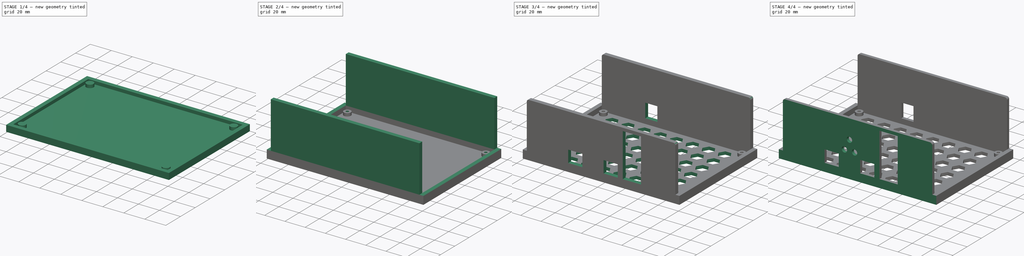
[diagram: build sequence overview — one tinted view per stage of 4, left to right]
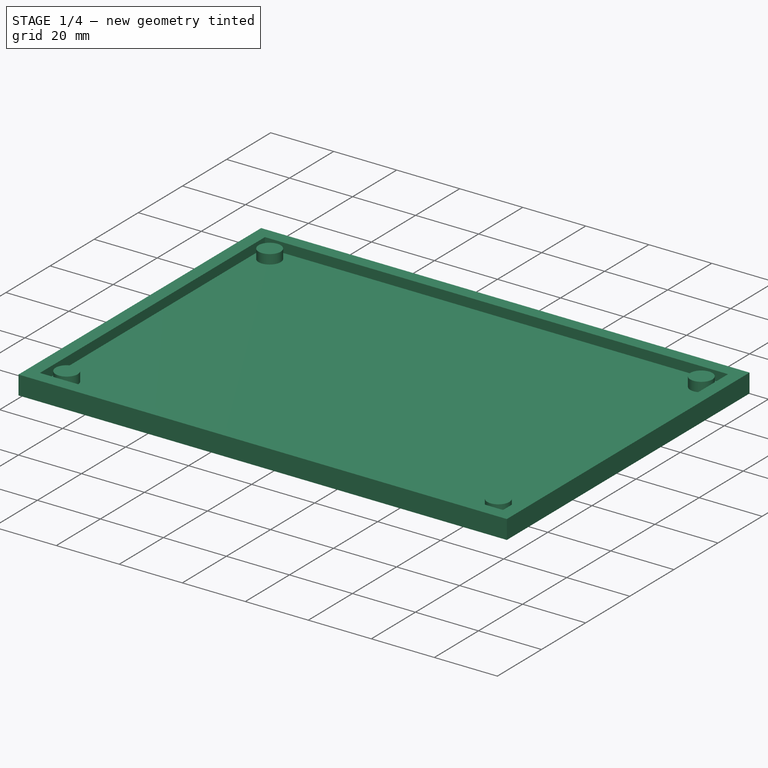
[diagram: stage 1 of 4 — iso view after this stage's code; geometry added in this stage tinted green]
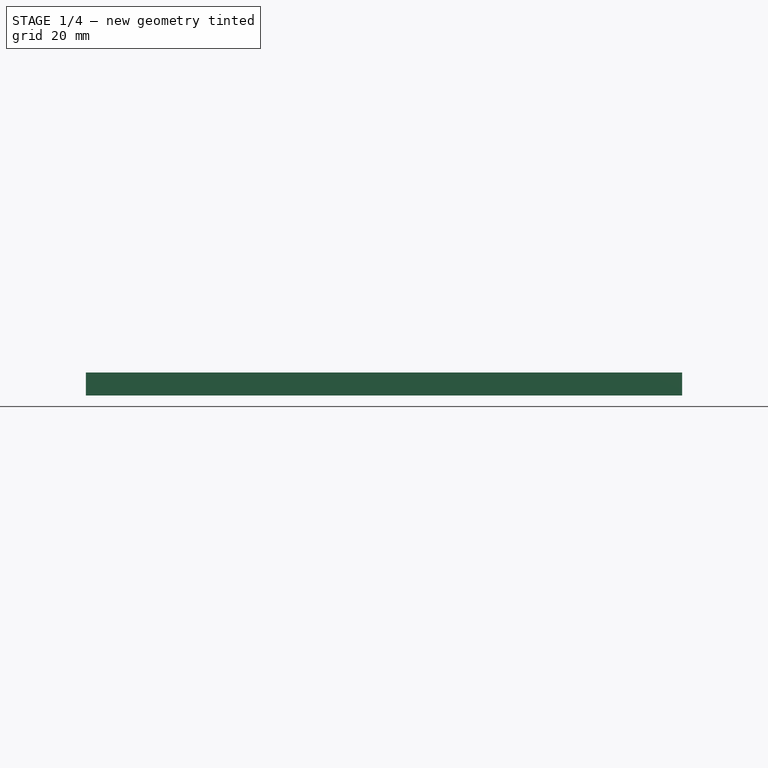
[diagram: stage 1 of 4 — front view after this stage's code; geometry added in this stage tinted green]
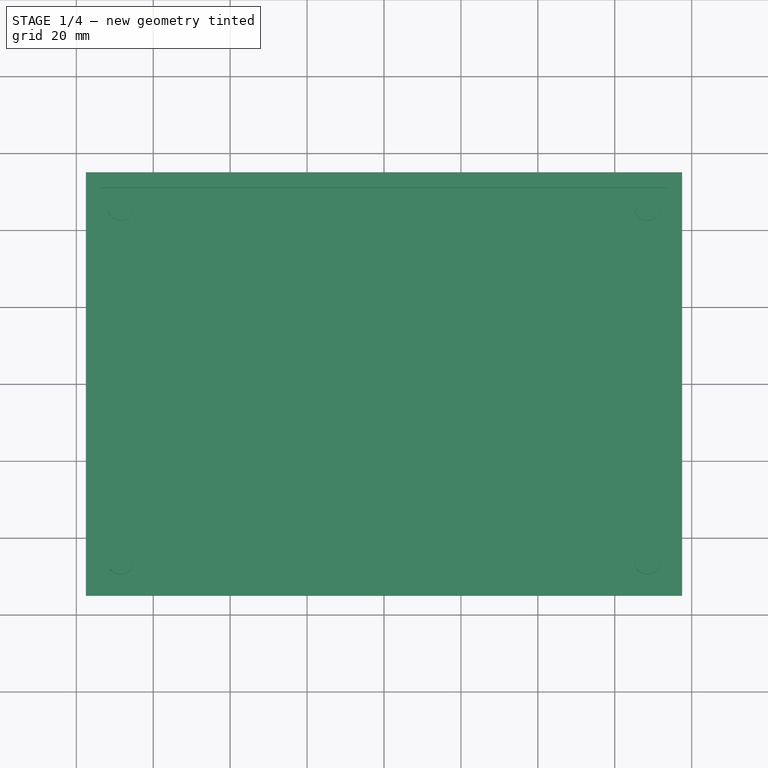
[diagram: stage 1 of 4 — top view after this stage's code; geometry added in this stage tinted green]
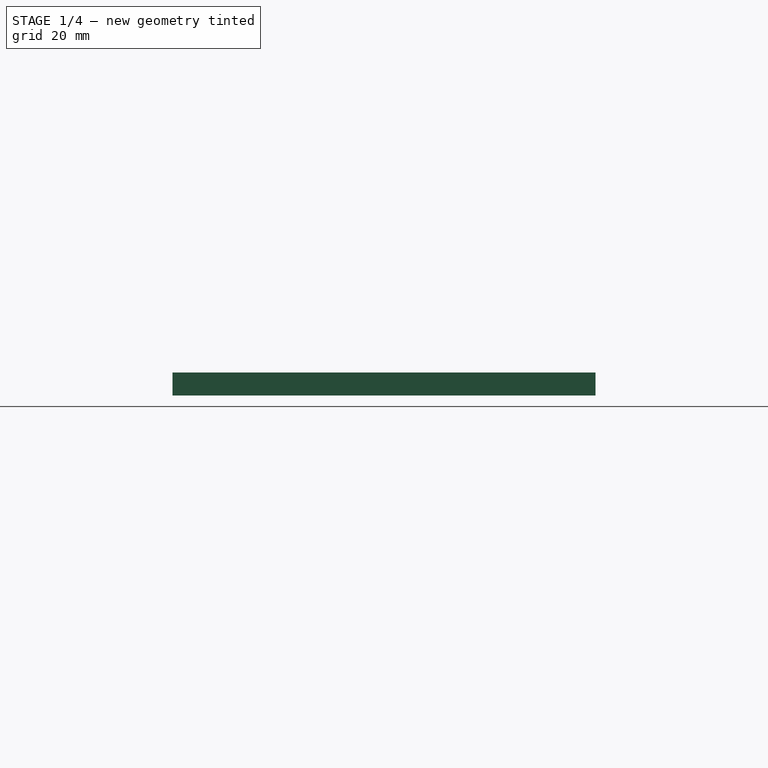
[diagram: stage 1 of 4 — right view after this stage's code; geometry added in this stage tinted green]
FCSTD DOCUMENT  (FreeCAD 0.18R4 (GitTag))
Label: MinitiounerProV1.1_Case
License: All rights reserved
LicenseURL: http://en.wikipedia.org/wiki/All_rights_reserved
objects: Sketcher::SketchObject×11, PartDesign::Pocket×8, PartDesign::Pad×4, PartDesign::Fillet×1, PartDesign::Body×1
note: 37 computed .brp shape members not serialized (recipe doc carries the construction recipe); baked Part::Feature solids carry a one-line shape summary decoded from their .brp

FEATURE [Sketcher::SketchObject] Sketch
  MapMode = 5
  Support = -> [XY_Plane]
  sketch-geometry (4):
    g0: LineSegment StartX=-77.5 StartY=55 StartZ=0 EndX=77.5 EndY=55 EndZ=0
    g1: LineSegment StartX=77.5 StartY=55 StartZ=0 EndX=77.5 EndY=-55 EndZ=0
    g2: LineSegment StartX=77.5 StartY=-55 StartZ=0 EndX=-77.5 EndY=-55 EndZ=0
    g3: LineSegment StartX=-77.5 StartY=-55 StartZ=0 EndX=-77.5 EndY=55 EndZ=0
  constraints (12):
    c: Coincident(g0,g1)
    c: Coincident(g1,g2)
    c: Coincident(g2,g3)
    c: Coincident(g3,g0)
    c: Horizontal(g0)
    c: Horizontal(g2)
    c: Vertical(g1)
    c: Vertical(g3)
    c: DistanceY(g-1,g0) = 55
    c: DistanceY(g2,g0) = 110
    c: DistanceX(g0,g-1) = 77.5
    c: DistanceX(g2,g1) = 155
FEATURE [PartDesign::Pad] Pad
  Length = 6
  Length2 = 100
  Profile = -> Sketch
  Type = 0
FEATURE [Sketcher::SketchObject] Sketch001
  MapMode = 5
  Placement = pos=(0,0,6) rot=(0,0,1;0rad)
  Support = -> [Pad]
  sketch-geometry (4):
    g0: LineSegment StartX=-73.5 StartY=51 StartZ=0 EndX=73.5 EndY=51 EndZ=0
    g1: LineSegment StartX=73.5 StartY=51 StartZ=0 EndX=73.5 EndY=-51 EndZ=0
    g2: LineSegment StartX=73.5 StartY=-51 StartZ=0 EndX=-73.5 EndY=-51 EndZ=0
    g3: LineSegment StartX=-73.5 StartY=-51 StartZ=0 EndX=-73.5 EndY=51 EndZ=0
  constraints (12):
    c: Coincident(g0,g1)
    c: Coincident(g1,g2)
    c: Coincident(g2,g3)
    c: Coincident(g3,g0)
    c: Horizontal(g0)
    c: Horizontal(g2)
    c: Vertical(g1)
    c: Vertical(g3)
    c: DistanceX(g0,g-1) = 73.5
    c: DistanceX(g0,g0) = 147
    c: DistanceY(g-1,g0) = 51
    c: DistanceY(g2,g0) = 102
FEATURE [PartDesign::Pocket] Pocket
  BaseFeature = -> Pad
  Length = 3
  Length2 = 100
  Profile = -> Sketch001
  Type = 0
FEATURE [Sketcher::SketchObject] Sketch002
  MapMode = 5
  Placement = pos=(0,0,3) rot=(0,0,1;0rad)
  Support = -> [Pocket]
  sketch-geometry (4):
    g0: Circle CenterX=-68.5 CenterY=46 CenterZ=0 NormalX=0 NormalY=0 NormalZ=1 AngleXU=0 Radius=3.5
    g1: Circle CenterX=-68.5 CenterY=-46 CenterZ=0 NormalX=0 NormalY=0 NormalZ=1 AngleXU=0 Radius=3.5
    g2: Circle CenterX=68.5 CenterY=46 CenterZ=0 NormalX=0 NormalY=0 NormalZ=1 AngleXU=0 Radius=3.5
    g3: Circle CenterX=68.5 CenterY=-46 CenterZ=0 NormalX=0 NormalY=0 NormalZ=1 AngleXU=0 Radius=3.5
  constraints (12):
    c: DistanceX(g0,g-1) = 68.5
    c: DistanceY(g-1,g0) = 46
    c: DistanceY(g-1,g2) = 46
    c: DistanceY(g3,g-1) = 46
    c: DistanceY(g1,g-1) = 46
    c: DistanceX(g-1,g2) = 68.5
    c: DistanceX(g-1,g3) = 68.5
    c: DistanceX(g1,g-1) = 68.5
    c: Radius(g0) = 3.5
    c: Radius(g1) = 3.5
    c: Radius(g2) = 3.5
    c: Radius(g3) = 3.5
FEATURE [PartDesign::Pad] Pad001
  BaseFeature = -> Pocket
  Length = 3
  Length2 = 100
  Profile = -> Sketch002
  Type = 0
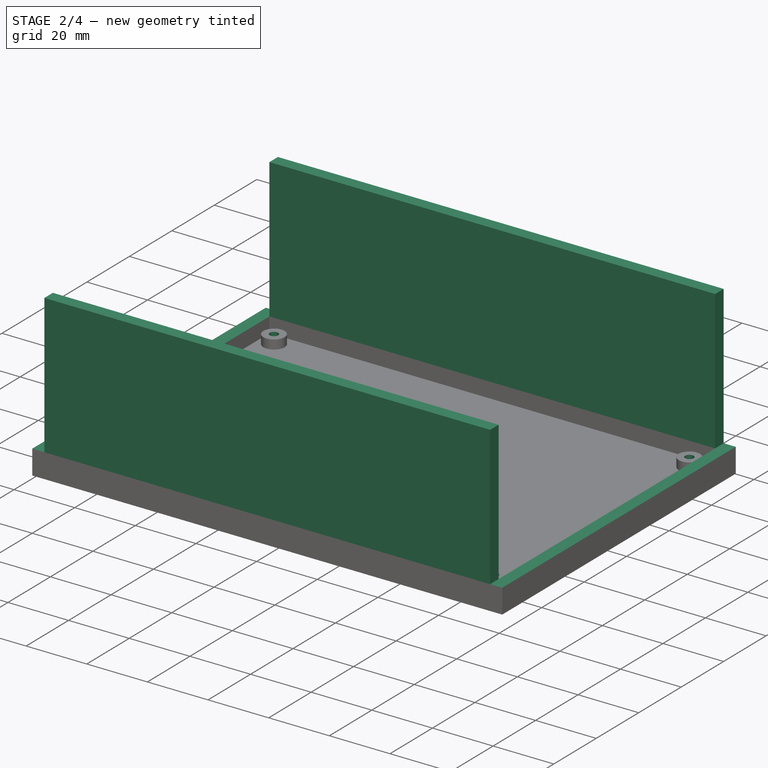
[diagram: stage 2 of 4 — iso view after this stage's code; geometry added in this stage tinted green]
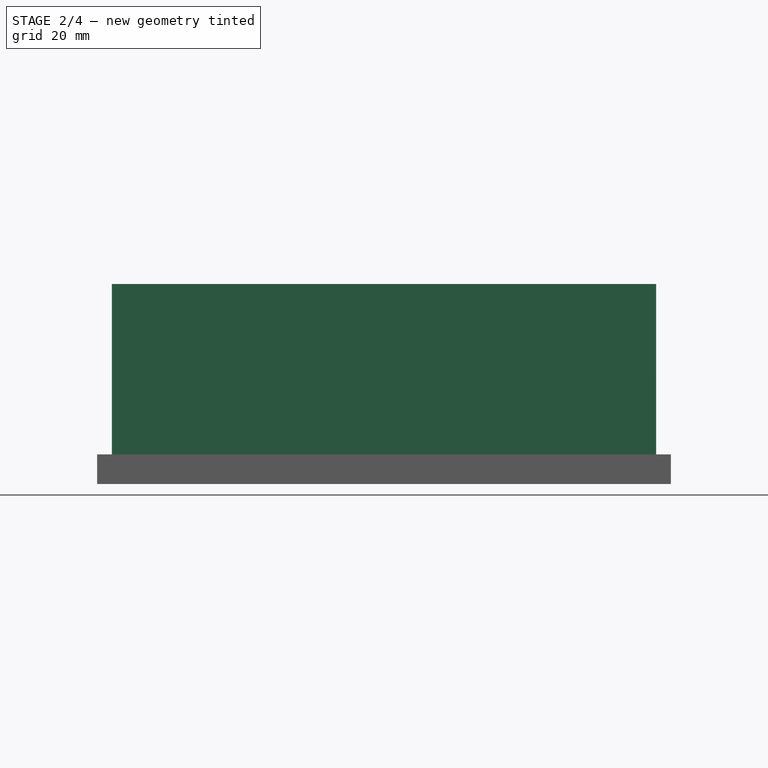
[diagram: stage 2 of 4 — front view after this stage's code; geometry added in this stage tinted green]
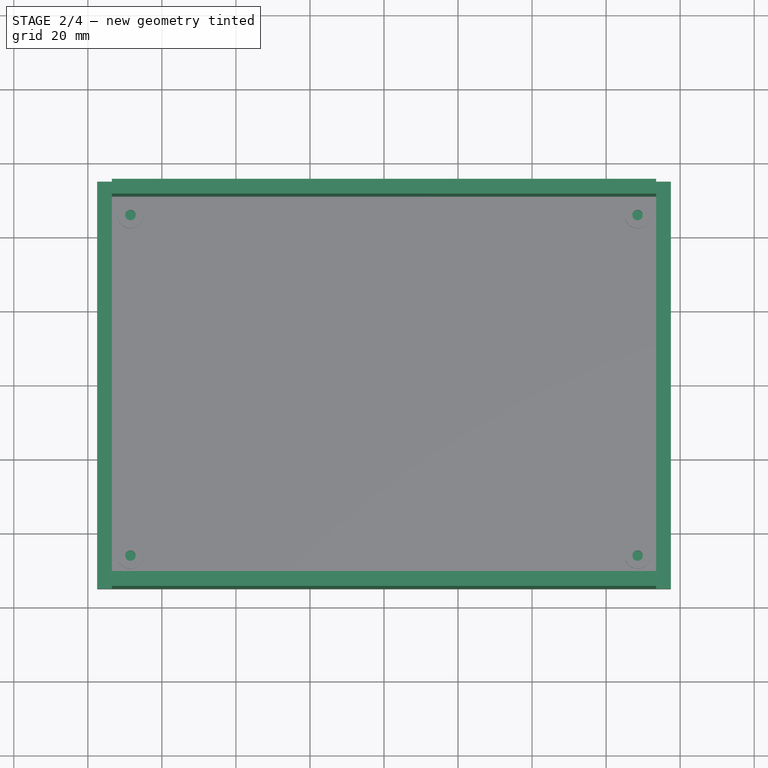
[diagram: stage 2 of 4 — top view after this stage's code; geometry added in this stage tinted green]
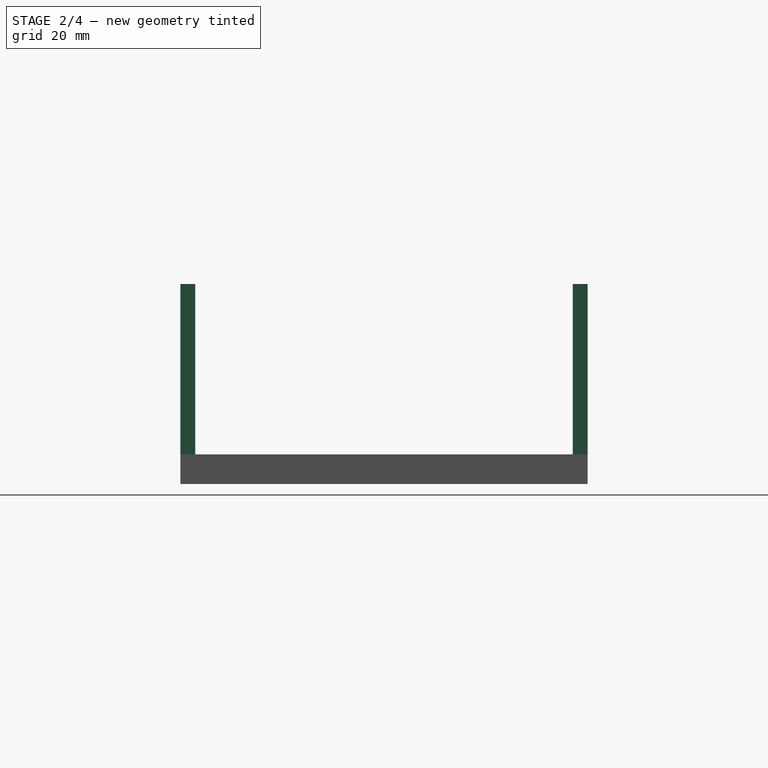
[diagram: stage 2 of 4 — right view after this stage's code; geometry added in this stage tinted green]
FEATURE [PartDesign::Pad] Pad002
  BaseFeature = -> Pad001
  Length = 2
  Length2 = 100
  Profile = -> Pad001 [Face5]
  Refine = true
  Type = 0
FEATURE [Sketcher::SketchObject] Sketch003
  MapMode = 5
  Placement = pos=(0,0,6) rot=(0,0,1;0rad)
  Support = -> [Pad002]
  sketch-geometry (4):
    g0: Circle CenterX=-68.5 CenterY=46 CenterZ=0 NormalX=0 NormalY=0 NormalZ=1 AngleXU=0 Radius=1.4
    g1: Circle CenterX=68.5 CenterY=46 CenterZ=0 NormalX=0 NormalY=0 NormalZ=1 AngleXU=0 Radius=1.4
    g2: Circle CenterX=68.5 CenterY=-46 CenterZ=0 NormalX=0 NormalY=0 NormalZ=1 AngleXU=0 Radius=1.4
    g3: Circle CenterX=-68.5 CenterY=-46 CenterZ=0 NormalX=0 NormalY=0 NormalZ=1 AngleXU=0 Radius=1.4
  constraints (12):
    c: DistanceX(g0,g-1) = 68.5
    c: DistanceX(g3,g-1) = 68.5
    c: DistanceX(g-1,g2) = 68.5
    c: DistanceX(g-1,g1) = 68.5
    c: DistanceY(g-1,g0) = 46
    c: DistanceY(g3,g-1) = 46
    c: DistanceY(g2,g-1) = 46
    c: DistanceY(g-1,g1) = 46
    c: Radius(g0) = 1.4
    c: Radius(g1) = 1.4
    c: Radius(g3) = 1.4
    c: Radius(g2) = 1.4
FEATURE [PartDesign::Pocket] Pocket001
  BaseFeature = -> Pad002
  Length = 5
  Length2 = 100
  Profile = -> Sketch003
  Type = 0
FEATURE [Sketcher::SketchObject] Sketch004
  MapMode = 5
  Placement = pos=(0,0,8) rot=(0,0,1;0rad)
  Support = -> [Pocket001]
  sketch-geometry (8):
    g0: LineSegment StartX=-73.5 StartY=-51 StartZ=0 EndX=73.5 EndY=-51 EndZ=0
    g1: LineSegment StartX=73.5 StartY=-51 StartZ=0 EndX=73.5 EndY=-55 EndZ=0
    g2: LineSegment StartX=73.5 StartY=-55 StartZ=0 EndX=-73.5 EndY=-55 EndZ=0
    g3: LineSegment StartX=-73.5 StartY=-55 StartZ=0 EndX=-73.5 EndY=-51 EndZ=0
    g4: LineSegment StartX=-73.5 StartY=55 StartZ=0 EndX=73.5 EndY=55 EndZ=0
    g5: LineSegment StartX=73.5 StartY=55 StartZ=0 EndX=73.5 EndY=51 EndZ=0
    g6: LineSegment StartX=73.5 StartY=51 StartZ=0 EndX=-73.5 EndY=51 EndZ=0
    g7: LineSegment StartX=-73.5 StartY=51 StartZ=0 EndX=-73.5 EndY=55 EndZ=0
  constraints (24):
    c: Coincident(g0,g1)
    c: Coincident(g1,g2)
    c: Coincident(g2,g3)
    c: Coincident(g3,g0)
    c: Horizontal(g0)
    c: Horizontal(g2)
    c: Vertical(g1)
    c: Vertical(g3)
    c: Coincident(g4,g5)
    c: Coincident(g5,g6)
    c: Coincident(g6,g7)
    c: Coincident(g7,g4)
    c: Horizontal(g4)
    c: Horizontal(g6)
    c: Vertical(g5)
    c: Vertical(g7)
    c: DistanceX(g0,g-1) = 73.5
    c: DistanceX(g0,g0) = 147
    c: DistanceY(g0,g-1) = 51
    c: DistanceY(g2,g0) = 4
    c: DistanceY(g-1,g6) = 51
    c: DistanceY(g6,g4) = 4
    c: DistanceX(g6,g-1) = 73.5
    c: DistanceX(g4,g4) = 147
FEATURE [PartDesign::Pad] Pad003
  BaseFeature = -> Pocket001
  Length = 46
  Length2 = 100
  Profile = -> Sketch004
  Type = 0
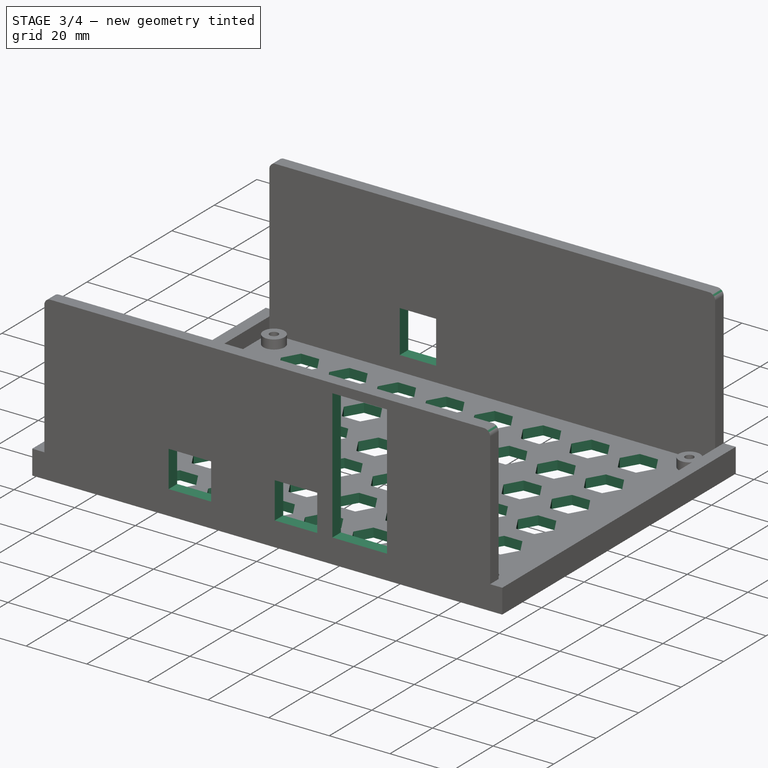
[diagram: stage 3 of 4 — iso view after this stage's code; geometry added in this stage tinted green]
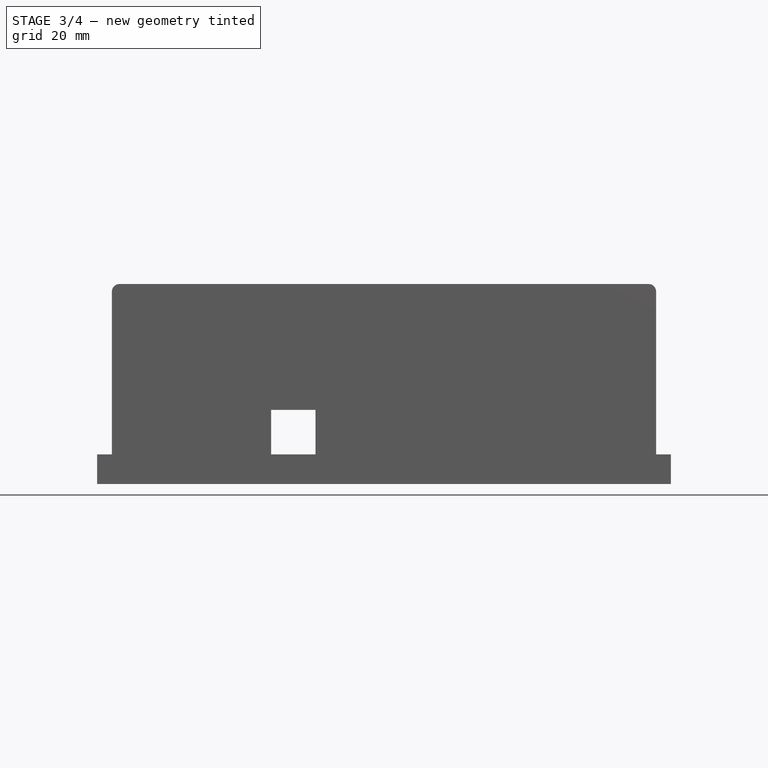
[diagram: stage 3 of 4 — front view after this stage's code; geometry added in this stage tinted green]
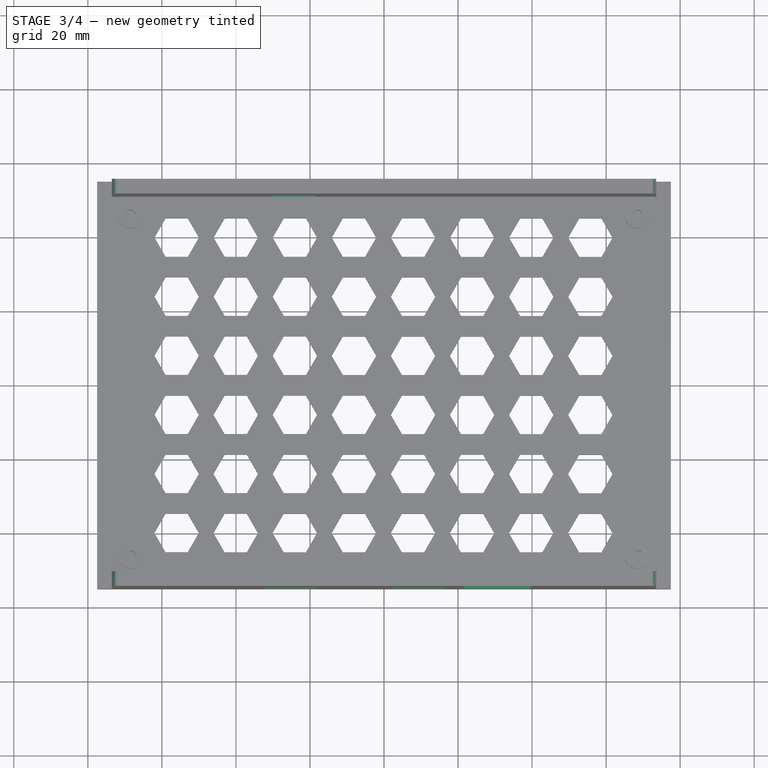
[diagram: stage 3 of 4 — top view after this stage's code; geometry added in this stage tinted green]
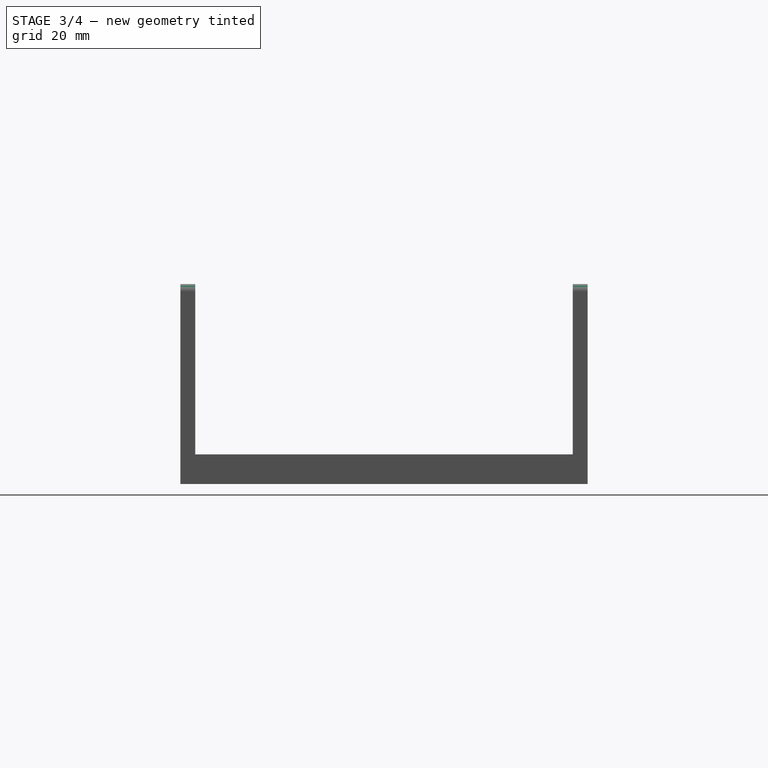
[diagram: stage 3 of 4 — right view after this stage's code; geometry added in this stage tinted green]
FEATURE [Sketcher::SketchObject] Sketch005
  MapMode = 5
  Placement = pos=(0,-55,0) rot=(1,0,0;1.5708rad)
  Support = -> [Pad003]
  sketch-geometry (13):
    g0: LineSegment StartX=-32.5 StartY=20 StartZ=0 EndX=-18.5 EndY=20 EndZ=0
    g1: LineSegment StartX=-18.5 StartY=20 StartZ=0 EndX=-18.5 EndY=8 EndZ=0
    g2: LineSegment StartX=-18.5 StartY=8 StartZ=0 EndX=-32.5 EndY=8 EndZ=0
    g3: LineSegment StartX=-32.5 StartY=8 StartZ=0 EndX=-32.5 EndY=20 EndZ=0
    g4: LineSegment StartX=2.5 StartY=20 StartZ=0 EndX=16.5 EndY=20 EndZ=0
    g5: LineSegment StartX=16.5 StartY=20 StartZ=0 EndX=16.5 EndY=8 EndZ=0
    g6: LineSegment StartX=16.5 StartY=8 StartZ=0 EndX=2.5 EndY=8 EndZ=0
    g7: LineSegment StartX=2.5 StartY=8 StartZ=0 EndX=2.5 EndY=20 EndZ=0
    g8: LineSegment StartX=21.5 StartY=51 StartZ=0 EndX=39.5 EndY=51 EndZ=0
    g9: LineSegment StartX=39.5 StartY=51 StartZ=0 EndX=39.5 EndY=8 EndZ=0
    g10: LineSegment StartX=39.5 StartY=8 StartZ=0 EndX=21.5 EndY=8 EndZ=0
    g11: LineSegment StartX=21.5 StartY=8 StartZ=0 EndX=21.5 EndY=51 EndZ=0
    g12: GeomPoint X=-73.5 Y=8 Z=0
  constraints (38):
    c: Coincident(g0,g1)
    c: Coincident(g1,g2)
    c: Coincident(g2,g3)
    c: Coincident(g3,g0)
    c: Horizontal(g0)
    c: Horizontal(g2)
    c: Vertical(g1)
    c: Vertical(g3)
    c: Coincident(g4,g5)
    c: Coincident(g5,g6)
    c: Coincident(g6,g7)
    c: Coincident(g7,g4)
    c: Horizontal(g4)
    c: Horizontal(g6)
    c: Vertical(g5)
    c: Vertical(g7)
    c: Coincident(g8,g9)
    c: Coincident(g9,g10)
    c: Coincident(g10,g11)
    c: Coincident(g11,g8)
    c: Horizontal(g8)
    c: Horizontal(g10)
    c: Vertical(g9)
    c: Vertical(g11)
    c: DistanceX(g12,g-1) = 73.5
    c: DistanceX(g12,g2) = 41
    c: DistanceX(g2,g1) = 14
    c: DistanceY(g1,g0) = 12
    c: DistanceY(g-1,g1) = 8
    c: DistanceY(g6,g4) = 12
    c: DistanceY(g-1,g6) = 8
    c: DistanceY(g-1,g10) = 8
    c: DistanceX(g12,g6) = 76
    c: DistanceX(g6,g5) = 14
    c: DistanceX(g12,g10) = 95
    c: DistanceX(g12,g9) = 113
    c: DistanceY(g6,g8) = 43
    c: DistanceY(g-1,g12) = 8
FEATURE [PartDesign::Pocket] Pocket002
  BaseFeature = -> Pad003
  Length = 5
  Length2 = 100
  Profile = -> Sketch005
  Type = 0
FEATURE [Sketcher::SketchObject] Sketch006
  MapMode = 5
  Placement = pos=(0,55,0) rot=(0,0.707107,0.707107;3.14159rad)
  Support = -> [Pocket002]
  sketch-geometry (5):
    g0: GeomPoint X=73.5 Y=8 Z=0
    g1: LineSegment StartX=18.5 StartY=22 StartZ=0 EndX=30.5 EndY=22 EndZ=0
    g2: LineSegment StartX=30.5 StartY=22 StartZ=0 EndX=30.5 EndY=8 EndZ=0
    g3: LineSegment StartX=30.5 StartY=8 StartZ=0 EndX=18.5 EndY=8 EndZ=0
    g4: LineSegment StartX=18.5 StartY=8 StartZ=0 EndX=18.5 EndY=22 EndZ=0
  constraints (14):
    c: DistanceX(g-1,g0) = 73.5
    c: DistanceY(g-1,g0) = 8
    c: Coincident(g1,g2)
    c: Coincident(g2,g3)
    c: Coincident(g3,g4)
    c: Coincident(g4,g1)
    c: Horizontal(g1)
    c: Horizontal(g3)
    c: Vertical(g2)
    c: Vertical(g4)
    c: DistanceX(g3,g0) = 55
    c: DistanceX(g2,g0) = 43
    c: DistanceY(g2,g1) = 14
    c: DistanceY(g-1,g2) = 8
FEATURE [PartDesign::Pocket] Pocket003
  BaseFeature = -> Pocket002
  Length = 5
  Length2 = 100
  Profile = -> Sketch006
  Type = 0
FEATURE [PartDesign::Fillet] Fillet
  Base = -> Pocket003 [Edge101,Edge103,Edge85,Edge83]
  BaseFeature = -> Pocket003
  Radius = 2
FEATURE [Sketcher::SketchObject] Sketch007
  MapMode = 5
  Placement = pos=(0,0,3) rot=(0,0,1;0rad)
  Support = -> [Fillet]
  sketch-geometry (383):
    g0: LineSegment StartX=-53 StartY=34.8038 StartZ=0 EndX=-50 EndY=40 EndZ=0
    g1: LineSegment StartX=-50 StartY=40 StartZ=0 EndX=-53 EndY=45.1962 EndZ=0
    g2: LineSegment StartX=-53 StartY=45.1962 StartZ=0 EndX=-59 EndY=45.1962 EndZ=0
    g3: LineSegment StartX=-59 StartY=45.1962 StartZ=0 EndX=-62 EndY=40 EndZ=0
    g4: LineSegment StartX=-62 StartY=40 StartZ=0 EndX=-59 EndY=34.8038 EndZ=0
    g5: LineSegment StartX=-59 StartY=34.8038 StartZ=0 EndX=-53 EndY=34.8038 EndZ=0
    g6: Circle [constr] CenterX=-56 CenterY=40 CenterZ=0 NormalX=0 NormalY=0 NormalZ=1 AngleXU=0 Radius=6
    g7: LineSegment StartX=-37.0353 StartY=34.7986 StartZ=0 EndX=-34.0353 EndY=39.9948 EndZ=0
    g8: LineSegment StartX=-34.0353 StartY=39.9948 StartZ=0 EndX=-37.0353 EndY=45.191 EndZ=0
    g9: LineSegment StartX=-37.0353 StartY=45.191 StartZ=0 EndX=-43.0353 EndY=45.191 EndZ=0
    g10: LineSegment StartX=-43.0353 StartY=45.191 StartZ=0 EndX=-46.0353 EndY=39.9948 EndZ=0
    g11: LineSegment StartX=-46.0353 StartY=39.9948 StartZ=0 EndX=-43.0353 EndY=34.7986 EndZ=0
    g12: LineSegment StartX=-43.0353 StartY=34.7986 StartZ=0 EndX=-37.0353 EndY=34.7986 EndZ=0
    g13: Circle [constr] CenterX=-40.0353 CenterY=39.9948 CenterZ=0 NormalX=0 NormalY=0 NormalZ=1 AngleXU=0 Radius=6
    g14: LineSegment [constr] StartX=-53 StartY=34.8038 StartZ=0 EndX=-37.0353 EndY=34.7986 EndZ=0
    g15: LineSegment StartX=-21.0706 StartY=34.7934 StartZ=0 EndX=-18.0706 EndY=39.9896 EndZ=0
    g16: LineSegment StartX=-18.0706 StartY=39.9896 StartZ=0 EndX=-21.0706 EndY=45.1858 EndZ=0
    g17: LineSegment StartX=-21.0706 StartY=45.1858 StartZ=0 EndX=-27.0706 EndY=45.1858 EndZ=0
    g18: LineSegment StartX=-27.0706 StartY=45.1858 StartZ=0 EndX=-30.0706 EndY=39.9896 EndZ=0
    g19: LineSegment StartX=-30.0706 StartY=39.9896 StartZ=0 EndX=-27.0706 EndY=34.7934 EndZ=0
    g20: LineSegment StartX=-27.0706 StartY=34.7934 StartZ=0 EndX=-21.0706 EndY=34.7934 EndZ=0
    g21: Circle [constr] CenterX=-24.0706 CenterY=39.9896 CenterZ=0 NormalX=0 NormalY=0 NormalZ=1 AngleXU=0 Radius=6
    g22: LineSegment [constr] StartX=-37.0353 StartY=34.7986 StartZ=0 EndX=-21.0706 EndY=34.7934 EndZ=0
    g23: LineSegment StartX=-5.10583 StartY=34.7883 StartZ=0 EndX=-2.10583 EndY=39.9844 EndZ=0
    g24: LineSegment StartX=-2.10583 StartY=39.9844 StartZ=0 EndX=-5.10583 EndY=45.1806 EndZ=0
    g25: LineSegment StartX=-5.10583 StartY=45.1806 StartZ=0 EndX=-11.1058 EndY=45.1806 EndZ=0
    g26: LineSegment StartX=-11.1058 StartY=45.1806 StartZ=0 EndX=-14.1058 EndY=39.9844 EndZ=0
    g27: LineSegment StartX=-14.1058 StartY=39.9844 StartZ=0 EndX=-11.1058 EndY=34.7883 EndZ=0
    g28: LineSegment StartX=-11.1058 StartY=34.7883 StartZ=0 EndX=-5.10583 EndY=34.7883 EndZ=0
    g29: Circle [constr] CenterX=-8.10583 CenterY=39.9844 CenterZ=0 NormalX=0 NormalY=0 NormalZ=1 AngleXU=0 Radius=6
    g30: LineSegment [constr] StartX=-21.0706 StartY=34.7934 StartZ=0 EndX=-5.10583 EndY=34.7883 EndZ=0
    g31: LineSegment StartX=10.8589 StartY=34.7831 StartZ=0 EndX=13.8589 EndY=39.9792 EndZ=0
    g32: LineSegment StartX=13.8589 StartY=39.9792 StartZ=0 EndX=10.8589 EndY=45.1754 EndZ=0
    g33: LineSegment StartX=10.8589 StartY=45.1754 StartZ=0 EndX=4.8589 EndY=45.1754 EndZ=0
    g34: LineSegment StartX=4.8589 StartY=45.1754 StartZ=0 EndX=1.8589 EndY=39.9792 EndZ=0
    g35: LineSegment StartX=1.8589 StartY=39.9792 StartZ=0 EndX=4.8589 EndY=34.7831 EndZ=0
    g36: LineSegment StartX=4.8589 StartY=34.7831 StartZ=0 EndX=10.8589 EndY=34.7831 EndZ=0
    g37: Circle [constr] CenterX=7.8589 CenterY=39.9792 CenterZ=0 NormalX=0 NormalY=0 NormalZ=1 AngleXU=0 Radius=6
    g38: LineSegment [constr] StartX=-5.10583 StartY=34.7883 StartZ=0 EndX=10.8589 EndY=34.7831 EndZ=0
    g39: LineSegment StartX=26.8236 StartY=34.7779 StartZ=0 EndX=29.8236 EndY=39.974 EndZ=0
    g40: LineSegment StartX=29.8236 StartY=39.974 StartZ=0 EndX=26.8236 EndY=45.1702 EndZ=0
    g41: LineSegment StartX=26.8236 StartY=45.1702 StartZ=0 EndX=20.8236 EndY=45.1702 EndZ=0
    g42: LineSegment StartX=20.8236 StartY=45.1702 StartZ=0 EndX=17.8236 EndY=39.974 EndZ=0
    g43: LineSegment StartX=17.8236 StartY=39.974 StartZ=0 EndX=20.8236 EndY=34.7779 EndZ=0
    g44: LineSegment StartX=20.8236 StartY=34.7779 StartZ=0 EndX=26.8236 EndY=34.7779 EndZ=0
    g45: Circle [constr] CenterX=23.8236 CenterY=39.974 CenterZ=0 NormalX=0 NormalY=0 NormalZ=1 AngleXU=0 Radius=6
    g46: LineSegment [constr] StartX=10.8589 StartY=34.7831 StartZ=0 EndX=26.8236 EndY=34.7779 EndZ=0
    g47: LineSegment StartX=42.7883 StartY=34.7727 StartZ=0 EndX=45.7883 EndY=39.9688 EndZ=0
    g48: LineSegment StartX=45.7883 StartY=39.9688 StartZ=0 EndX=42.7883 EndY=45.165 EndZ=0
    g49: LineSegment StartX=42.7883 StartY=45.165 StartZ=0 EndX=36.7883 EndY=45.165 EndZ=0
    g50: LineSegment StartX=36.7883 StartY=45.165 StartZ=0 EndX=33.7883 EndY=39.9688 EndZ=0
    g51: LineSegment StartX=33.7883 StartY=39.9688 StartZ=0 EndX=36.7883 EndY=34.7727 EndZ=0
    g52: LineSegment StartX=36.7883 StartY=34.7727 StartZ=0 EndX=42.7883 EndY=34.7727 EndZ=0
    g53: Circle [constr] CenterX=39.7883 CenterY=39.9688 CenterZ=0 NormalX=0 NormalY=0 NormalZ=1 AngleXU=0 Radius=6
    g54: LineSegment [constr] StartX=26.8236 StartY=34.7779 StartZ=0 EndX=42.7883 EndY=34.7727 EndZ=0
    g55: LineSegment StartX=58.7531 StartY=34.7675 StartZ=0 EndX=61.7531 EndY=39.9636 EndZ=0
    g56: LineSegment StartX=61.7531 StartY=39.9636 StartZ=0 EndX=58.7531 EndY=45.1598 EndZ=0
    g57: LineSegment StartX=58.7531 StartY=45.1598 StartZ=0 EndX=52.7531 EndY=45.1598 EndZ=0
    g58: LineSegment StartX=52.7531 StartY=45.1598 StartZ=0 EndX=49.7531 EndY=39.9636 EndZ=0
    g59: LineSegment StartX=49.7531 StartY=39.9636 StartZ=0 EndX=52.7531 EndY=34.7675 EndZ=0
    g60: LineSegment StartX=52.7531 StartY=34.7675 StartZ=0 EndX=58.7531 EndY=34.7675 EndZ=0
    g61: Circle [constr] CenterX=55.7531 CenterY=39.9636 CenterZ=0 NormalX=0 NormalY=0 NormalZ=1 AngleXU=0 Radius=6
    g62: LineSegment [constr] StartX=42.7883 StartY=34.7727 StartZ=0 EndX=58.7531 EndY=34.7675 EndZ=0
    g63: LineSegment StartX=-53.0052 StartY=18.8391 StartZ=0 EndX=-50.0052 EndY=24.0353 EndZ=0
    g64: LineSegment StartX=-50.0052 StartY=24.0353 StartZ=0 EndX=-53.0052 EndY=29.2314 EndZ=0
    g65: LineSegment StartX=-53.0052 StartY=29.2314 StartZ=0 EndX=-59.0052 EndY=29.2314 EndZ=0
    g66: LineSegment StartX=-59.0052 StartY=29.2314 StartZ=0 EndX=-62.0052 EndY=24.0353 EndZ=0
    g67: LineSegment StartX=-62.0052 StartY=24.0353 StartZ=0 EndX=-59.0052 EndY=18.8391 EndZ=0
    g68: LineSegment StartX=-59.0052 StartY=18.8391 StartZ=0 EndX=-53.0052 EndY=18.8391 EndZ=0
    g69: Circle [constr] CenterX=-56.0052 CenterY=24.0353 CenterZ=0 NormalX=0 NormalY=0 NormalZ=1 AngleXU=0 Radius=6
    g70: LineSegment [constr] StartX=-53 StartY=34.8038 StartZ=0 EndX=-53.0052 EndY=18.8391 EndZ=0
    g71: LineSegment StartX=-37.0405 StartY=18.8339 StartZ=0 EndX=-34.0405 EndY=24.0301 EndZ=0
    g72: LineSegment StartX=-34.0405 StartY=24.0301 StartZ=0 EndX=-37.0405 EndY=29.2262 EndZ=0
    g73: LineSegment StartX=-37.0405 StartY=29.2262 StartZ=0 EndX=-43.0405 EndY=29.2262 EndZ=0
    g74: LineSegment StartX=-43.0405 StartY=29.2262 StartZ=0 EndX=-46.0405 EndY=24.0301 EndZ=0
    g75: LineSegment StartX=-46.0405 StartY=24.0301 StartZ=0 EndX=-43.0405 EndY=18.8339 EndZ=0
    g76: LineSegment StartX=-43.0405 StartY=18.8339 StartZ=0 EndX=-37.0405 EndY=18.8339 EndZ=0
    g77: Circle [constr] CenterX=-40.0405 CenterY=24.0301 CenterZ=0 NormalX=0 NormalY=0 NormalZ=1 AngleXU=0 Radius=6
    g78: LineSegment [constr] StartX=-53.0052 StartY=18.8391 StartZ=0 EndX=-37.0405 EndY=18.8339 EndZ=0
    g79: LineSegment StartX=-21.0757 StartY=18.8287 StartZ=0 EndX=-18.0757 EndY=24.0249 EndZ=0
    g80: LineSegment StartX=-18.0757 StartY=24.0249 StartZ=0 EndX=-21.0757 EndY=29.221 EndZ=0
    g81: LineSegment StartX=-21.0757 StartY=29.221 StartZ=0 EndX=-27.0757 EndY=29.221 EndZ=0
    g82: LineSegment StartX=-27.0757 StartY=29.221 StartZ=0 EndX=-30.0757 EndY=24.0249 EndZ=0
    g83: LineSegment StartX=-30.0757 StartY=24.0249 StartZ=0 EndX=-27.0757 EndY=18.8287 EndZ=0
    g84: LineSegment StartX=-27.0757 StartY=18.8287 StartZ=0 EndX=-21.0757 EndY=18.8287 EndZ=0
    g85: Circle [constr] CenterX=-24.0757 CenterY=24.0249 CenterZ=0 NormalX=0 NormalY=0 NormalZ=1 AngleXU=0 Radius=6
    g86: LineSegment [constr] StartX=-37.0405 StartY=18.8339 StartZ=0 EndX=-21.0757 EndY=18.8287 EndZ=0
    g87: LineSegment StartX=-5.11102 StartY=18.8235 StartZ=0 EndX=-2.11102 EndY=24.0197 EndZ=0
    g88: LineSegment StartX=-2.11102 StartY=24.0197 StartZ=0 EndX=-5.11102 EndY=29.2158 EndZ=0
    g89: LineSegment StartX=-5.11102 StartY=29.2158 StartZ=0 EndX=-11.111 EndY=29.2158 EndZ=0
    g90: LineSegment StartX=-11.111 StartY=29.2158 StartZ=0 EndX=-14.111 EndY=24.0197 EndZ=0
    g91: LineSegment StartX=-14.111 StartY=24.0197 StartZ=0 EndX=-11.111 EndY=18.8235 EndZ=0
    g92: LineSegment StartX=-11.111 StartY=18.8235 StartZ=0 EndX=-5.11102 EndY=18.8235 EndZ=0
    g93: Circle [constr] CenterX=-8.11102 CenterY=24.0197 CenterZ=0 NormalX=0 NormalY=0 NormalZ=1 AngleXU=0 Radius=6
    g94: LineSegment [constr] StartX=-21.0757 StartY=18.8287 StartZ=0 EndX=-5.11102 EndY=18.8235 EndZ=0
    g95: LineSegment StartX=10.8537 StartY=18.8183 StartZ=0 EndX=13.8537 EndY=24.0145 EndZ=0
    g96: LineSegment StartX=13.8537 StartY=24.0145 StartZ=0 EndX=10.8537 EndY=29.2106 EndZ=0
    g97: LineSegment StartX=10.8537 StartY=29.2106 StartZ=0 EndX=4.8537 EndY=29.2106 EndZ=0
    g98: LineSegment StartX=4.8537 StartY=29.2106 StartZ=0 EndX=1.8537 EndY=24.0145 EndZ=0
    g99: LineSegment StartX=1.8537 StartY=24.0145 StartZ=0 EndX=4.8537 EndY=18.8183 EndZ=0
    g100: LineSegment StartX=4.8537 StartY=18.8183 StartZ=0 EndX=10.8537 EndY=18.8183 EndZ=0
    g101: Circle [constr] CenterX=7.8537 CenterY=24.0145 CenterZ=0 NormalX=0 NormalY=0 NormalZ=1 AngleXU=0 Radius=6
    g102: LineSegment [constr] StartX=-5.11102 StartY=18.8235 StartZ=0 EndX=10.8537 EndY=18.8183 EndZ=0
    g103: LineSegment StartX=26.8184 StartY=18.8131 StartZ=0 EndX=29.8184 EndY=24.0093 EndZ=0
    g104: LineSegment StartX=29.8184 StartY=24.0093 StartZ=0 EndX=26.8184 EndY=29.2054 EndZ=0
    g105: LineSegment StartX=26.8184 StartY=29.2054 StartZ=0 EndX=20.8184 EndY=29.2054 EndZ=0
    g106: LineSegment StartX=20.8184 StartY=29.2054 StartZ=0 EndX=17.8184 EndY=24.0093 EndZ=0
    g107: LineSegment StartX=17.8184 StartY=24.0093 StartZ=0 EndX=20.8184 EndY=18.8131 EndZ=0
    g108: LineSegment StartX=20.8184 StartY=18.8131 StartZ=0 EndX=26.8184 EndY=18.8131 EndZ=0
    g109: Circle [constr] CenterX=23.8184 CenterY=24.0093 CenterZ=0 NormalX=0 NormalY=0 NormalZ=1 AngleXU=0 Radius=6
    g110: LineSegment [constr] StartX=10.8537 StartY=18.8183 StartZ=0 EndX=26.8184 EndY=18.8131 EndZ=0
    g111: LineSegment StartX=42.7832 StartY=18.8079 StartZ=0 EndX=45.7832 EndY=24.0041 EndZ=0
    g112: LineSegment StartX=45.7832 StartY=24.0041 StartZ=0 EndX=42.7832 EndY=29.2002 EndZ=0
    g113: LineSegment StartX=42.7832 StartY=29.2002 StartZ=0 EndX=36.7832 EndY=29.2002 EndZ=0
    g114: LineSegment StartX=36.7832 StartY=29.2002 StartZ=0 EndX=33.7832 EndY=24.0041 EndZ=0
    g115: LineSegment StartX=33.7832 StartY=24.0041 StartZ=0 EndX=36.7832 EndY=18.8079 EndZ=0
    g116: LineSegment StartX=36.7832 StartY=18.8079 StartZ=0 EndX=42.7832 EndY=18.8079 EndZ=0
    g117: Circle [constr] CenterX=39.7832 CenterY=24.0041 CenterZ=0 NormalX=0 NormalY=0 NormalZ=1 AngleXU=0 Radius=6
    g118: LineSegment [constr] StartX=26.8184 StartY=18.8131 StartZ=0 EndX=42.7832 EndY=18.8079 EndZ=0
    g119: LineSegment StartX=58.7479 StartY=18.8027 StartZ=0 EndX=61.7479 EndY=23.9989 EndZ=0
    g120: LineSegment StartX=61.7479 StartY=23.9989 StartZ=0 EndX=58.7479 EndY=29.195 EndZ=0
    g121: LineSegment StartX=58.7479 StartY=29.195 StartZ=0 EndX=52.7479 EndY=29.195 EndZ=0
    g122: LineSegment StartX=52.7479 StartY=29.195 StartZ=0 EndX=49.7479 EndY=23.9989 EndZ=0
    g123: LineSegment StartX=49.7479 StartY=23.9989 StartZ=0 EndX=52.7479 EndY=18.8027 EndZ=0
    g124: LineSegment StartX=52.7479 StartY=18.8027 StartZ=0 EndX=58.7479 EndY=18.8027 EndZ=0
    g125: Circle [constr] CenterX=55.7479 CenterY=23.9989 CenterZ=0 NormalX=0 NormalY=0 NormalZ=1 AngleXU=0 Radius=6
    g126: LineSegment [constr] StartX=42.7832 StartY=18.8079 StartZ=0 EndX=58.7479 EndY=18.8027 EndZ=0
    g127: LineSegment StartX=-53.0104 StartY=2.8744 StartZ=0 EndX=-50.0104 EndY=8.07055 EndZ=0
    g128: LineSegment StartX=-50.0104 StartY=8.07055 StartZ=0 EndX=-53.0104 EndY=13.2667 EndZ=0
    g129: LineSegment StartX=-53.0104 StartY=13.2667 StartZ=0 EndX=-59.0104 EndY=13.2667 EndZ=0
    g130: LineSegment StartX=-59.0104 StartY=13.2667 StartZ=0 EndX=-62.0104 EndY=8.07055 EndZ=0
    g131: LineSegment StartX=-62.0104 StartY=8.07055 StartZ=0 EndX=-59.0104 EndY=2.8744 EndZ=0
    g132: LineSegment StartX=-59.0104 StartY=2.8744 StartZ=0 EndX=-53.0104 EndY=2.8744 EndZ=0
    g133: Circle [constr] CenterX=-56.0104 CenterY=8.07055 CenterZ=0 NormalX=0 NormalY=0 NormalZ=1 AngleXU=0 Radius=6
    g134: LineSegment [constr] StartX=-53.0052 StartY=18.8391 StartZ=0 EndX=-53.0104 EndY=2.8744 EndZ=0
    g135: LineSegment StartX=-37.0457 StartY=2.8692 StartZ=0 EndX=-34.0457 EndY=8.06535 EndZ=0
    g136: LineSegment StartX=-34.0457 StartY=8.06535 StartZ=0 EndX=-37.0457 EndY=13.2615 EndZ=0
    g137: LineSegment StartX=-37.0457 StartY=13.2615 StartZ=0 EndX=-43.0457 EndY=13.2615 EndZ=0
    g138: LineSegment StartX=-43.0457 StartY=13.2615 StartZ=0 EndX=-46.0457 EndY=8.06535 EndZ=0
    g139: LineSegment StartX=-46.0457 StartY=8.06535 StartZ=0 EndX=-43.0457 EndY=2.8692 EndZ=0
    g140: LineSegment StartX=-43.0457 StartY=2.8692 StartZ=0 EndX=-37.0457 EndY=2.8692 EndZ=0
    g141: Circle [constr] CenterX=-40.0457 CenterY=8.06535 CenterZ=0 NormalX=0 NormalY=0 NormalZ=1 AngleXU=0 Radius=6
    g142: LineSegment [constr] StartX=-53.0104 StartY=2.8744 StartZ=0 EndX=-37.0457 EndY=2.8692 EndZ=0
    g143: LineSegment StartX=-21.0809 StartY=2.864 StartZ=0 EndX=-18.0809 EndY=8.06015 EndZ=0
    g144: LineSegment StartX=-18.0809 StartY=8.06015 StartZ=0 EndX=-21.0809 EndY=13.2563 EndZ=0
    g145: LineSegment StartX=-21.0809 StartY=13.2563 StartZ=0 EndX=-27.0809 EndY=13.2563 EndZ=0
    g146: LineSegment StartX=-27.0809 StartY=13.2563 StartZ=0 EndX=-30.0809 EndY=8.06015 EndZ=0
    g147: LineSegment StartX=-30.0809 StartY=8.06015 StartZ=0 EndX=-27.0809 EndY=2.864 EndZ=0
    g148: LineSegment StartX=-27.0809 StartY=2.864 StartZ=0 EndX=-21.0809 EndY=2.864 EndZ=0
    g149: Circle [constr] CenterX=-24.0809 CenterY=8.06015 CenterZ=0 NormalX=0 NormalY=0 NormalZ=1 AngleXU=0 Radius=6
    g150: LineSegment [constr] StartX=-37.0457 StartY=2.8692 StartZ=0 EndX=-21.0809 EndY=2.864 EndZ=0
    g151: LineSegment StartX=-5.11622 StartY=2.8588 StartZ=0 EndX=-2.11622 EndY=8.05495 EndZ=0
    g152: LineSegment StartX=-2.11622 StartY=8.05495 StartZ=0 EndX=-5.11622 EndY=13.2511 EndZ=0
    g153: LineSegment StartX=-5.11622 StartY=13.2511 StartZ=0 EndX=-11.1162 EndY=13.2511 EndZ=0
    g154: LineSegment StartX=-11.1162 StartY=13.2511 StartZ=0 EndX=-14.1162 EndY=8.05495 EndZ=0
    g155: LineSegment StartX=-14.1162 StartY=8.05495 StartZ=0 EndX=-11.1162 EndY=2.8588 EndZ=0
    g156: LineSegment StartX=-11.1162 StartY=2.8588 StartZ=0 EndX=-5.11622 EndY=2.8588 EndZ=0
    g157: Circle [constr] CenterX=-8.11622 CenterY=8.05495 CenterZ=0 NormalX=0 NormalY=0 NormalZ=1 AngleXU=0 Radius=6
    g158: LineSegment [constr] StartX=-21.0809 StartY=2.864 StartZ=0 EndX=-5.11622 EndY=2.8588 EndZ=0
    g159: LineSegment StartX=10.8485 StartY=2.8536 StartZ=0 EndX=13.8485 EndY=8.04975 EndZ=0
    g160: LineSegment StartX=13.8485 StartY=8.04975 StartZ=0 EndX=10.8485 EndY=13.2459 EndZ=0
    g161: LineSegment StartX=10.8485 StartY=13.2459 StartZ=0 EndX=4.8485 EndY=13.2459 EndZ=0
    g162: LineSegment StartX=4.8485 StartY=13.2459 StartZ=0 EndX=1.8485 EndY=8.04975 EndZ=0
    g163: LineSegment StartX=1.8485 StartY=8.04975 StartZ=0 EndX=4.8485 EndY=2.8536 EndZ=0
    g164: LineSegment StartX=4.8485 StartY=2.8536 StartZ=0 EndX=10.8485 EndY=2.8536 EndZ=0
    g165: Circle [constr] CenterX=7.8485 CenterY=8.04975 CenterZ=0 NormalX=0 NormalY=0 NormalZ=1 AngleXU=0 Radius=6
    g166: LineSegment [constr] StartX=-5.11622 StartY=2.8588 StartZ=0 EndX=10.8485 EndY=2.8536 EndZ=0
    g167: LineSegment StartX=26.8132 StartY=2.8484 StartZ=0 EndX=29.8132 EndY=8.04455 EndZ=0
    g168: LineSegment StartX=29.8132 StartY=8.04455 StartZ=0 EndX=26.8132 EndY=13.2407 EndZ=0
    g169: LineSegment StartX=26.8132 StartY=13.2407 StartZ=0 EndX=20.8132 EndY=13.2407 EndZ=0
    g170: LineSegment StartX=20.8132 StartY=13.2407 StartZ=0 EndX=17.8132 EndY=8.04455 EndZ=0
    g171: LineSegment StartX=17.8132 StartY=8.04455 StartZ=0 EndX=20.8132 EndY=2.8484 EndZ=0
    g172: LineSegment StartX=20.8132 StartY=2.8484 StartZ=0 EndX=26.8132 EndY=2.8484 EndZ=0
    g173: Circle [constr] CenterX=23.8132 CenterY=8.04455 CenterZ=0 NormalX=0 NormalY=0 NormalZ=1 AngleXU=0 Radius=6
    g174: LineSegment [constr] StartX=10.8485 StartY=2.8536 StartZ=0 EndX=26.8132 EndY=2.8484 EndZ=0
    g175: LineSegment StartX=42.778 StartY=2.8432 StartZ=0 EndX=45.778 EndY=8.03936 EndZ=0
    g176: LineSegment StartX=45.778 StartY=8.03936 StartZ=0 EndX=42.778 EndY=13.2355 EndZ=0
    g177: LineSegment StartX=42.778 StartY=13.2355 StartZ=0 EndX=36.778 EndY=13.2355 EndZ=0
    g178: LineSegment StartX=36.778 StartY=13.2355 StartZ=0 EndX=33.778 EndY=8.03936 EndZ=0
    g179: LineSegment StartX=33.778 StartY=8.03936 StartZ=0 EndX=36.778 EndY=2.8432 EndZ=0
    g180: LineSegment StartX=36.778 StartY=2.8432 StartZ=0 EndX=42.778 EndY=2.8432 EndZ=0
    g181: Circle [constr] CenterX=39.778 CenterY=8.03936 CenterZ=0 NormalX=0 NormalY=0 NormalZ=1 AngleXU=0 Radius=6
    g182: LineSegment [constr] StartX=26.8132 StartY=2.8484 StartZ=0 EndX=42.778 EndY=2.8432 EndZ=0
    g183: LineSegment StartX=58.7427 StartY=2.838 StartZ=0 EndX=61.7427 EndY=8.03416 EndZ=0
    g184: LineSegment StartX=61.7427 StartY=8.03416 StartZ=0 EndX=58.7427 EndY=13.2303 EndZ=0
    g185: LineSegment StartX=58.7427 StartY=13.2303 StartZ=0 EndX=52.7427 EndY=13.2303 EndZ=0
    g186: LineSegment StartX=52.7427 StartY=13.2303 StartZ=0 EndX=49.7427 EndY=8.03416 EndZ=0
    g187: LineSegment StartX=49.7427 StartY=8.03416 StartZ=0 EndX=52.7427 EndY=2.838 EndZ=0
    g188: LineSegment StartX=52.7427 StartY=2.838 StartZ=0 EndX=58.7427 EndY=2.838 EndZ=0
    g189: Circle [constr] CenterX=55.7427 CenterY=8.03416 CenterZ=0 NormalX=0 NormalY=0 NormalZ=1 AngleXU=0 Radius=6
    g190: LineSegment [constr] StartX=42.778 StartY=2.8432 StartZ=0 EndX=58.7427 EndY=2.838 EndZ=0
    g191: LineSegment StartX=-53.0156 StartY=-13.0903 StartZ=0 EndX=-50.0156 EndY=-7.89417 EndZ=0
    g192: LineSegment StartX=-50.0156 StartY=-7.89417 StartZ=0 EndX=-53.0156 EndY=-2.69802 EndZ=0
    g193: LineSegment StartX=-53.0156 StartY=-2.69802 StartZ=0 EndX=-59.0156 EndY=-2.69802 EndZ=0
    g194: LineSegment StartX=-59.0156 StartY=-2.69802 StartZ=0 EndX=-62.0156 EndY=-7.89417 EndZ=0
    g195: LineSegment StartX=-62.0156 StartY=-7.89417 StartZ=0 EndX=-59.0156 EndY=-13.0903 EndZ=0
    g196: LineSegment StartX=-59.0156 StartY=-13.0903 StartZ=0 EndX=-53.0156 EndY=-13.0903 EndZ=0
    g197: Circle [constr] CenterX=-56.0156 CenterY=-7.89417 CenterZ=0 NormalX=0 NormalY=0 NormalZ=1 AngleXU=0 Radius=6
    g198: LineSegment [constr] StartX=-53.0104 StartY=2.8744 StartZ=0 EndX=-53.0156 EndY=-13.0903 EndZ=0
    g199: LineSegment StartX=-37.0509 StartY=-13.0955 StartZ=0 EndX=-34.0509 EndY=-7.89937 EndZ=0
    g200: LineSegment StartX=-34.0509 StartY=-7.89937 StartZ=0 EndX=-37.0509 EndY=-2.70322 EndZ=0
    g201: LineSegment StartX=-37.0509 StartY=-2.70322 StartZ=0 EndX=-43.0509 EndY=-2.70322 EndZ=0
    g202: LineSegment StartX=-43.0509 StartY=-2.70322 StartZ=0 EndX=-46.0509 EndY=-7.89937 EndZ=0
    g203: LineSegment StartX=-46.0509 StartY=-7.89937 StartZ=0 EndX=-43.0509 EndY=-13.0955 EndZ=0
    g204: LineSegment StartX=-43.0509 StartY=-13.0955 StartZ=0 EndX=-37.0509 EndY=-13.0955 EndZ=0
    g205: Circle [constr] CenterX=-40.0509 CenterY=-7.89937 CenterZ=0 NormalX=0 NormalY=0 NormalZ=1 AngleXU=0 Radius=6
    g206: LineSegment [constr] StartX=-53.0156 StartY=-13.0903 StartZ=0 EndX=-37.0509 EndY=-13.0955 EndZ=0
    g207: LineSegment StartX=-21.0861 StartY=-13.1007 StartZ=0 EndX=-18.0861 EndY=-7.90457 EndZ=0
    g208: LineSegment StartX=-18.0861 StartY=-7.90457 StartZ=0 EndX=-21.0861 EndY=-2.70842 EndZ=0
    g209: LineSegment StartX=-21.0861 StartY=-2.70842 StartZ=0 EndX=-27.0861 EndY=-2.70842 EndZ=0
    g210: LineSegment StartX=-27.0861 StartY=-2.70842 StartZ=0 EndX=-30.0861 EndY=-7.90457 EndZ=0
    g211: LineSegment StartX=-30.0861 StartY=-7.90457 StartZ=0 EndX=-27.0861 EndY=-13.1007 EndZ=0
    g212: LineSegment StartX=-27.0861 StartY=-13.1007 StartZ=0 EndX=-21.0861 EndY=-13.1007 EndZ=0
    g213: Circle [constr] CenterX=-24.0861 CenterY=-7.90457 CenterZ=0 NormalX=0 NormalY=0 NormalZ=1 AngleXU=0 Radius=6
    g214: LineSegment [constr] StartX=-37.0509 StartY=-13.0955 StartZ=0 EndX=-21.0861 EndY=-13.1007 EndZ=0
    g215: LineSegment StartX=-5.12142 StartY=-13.1059 StartZ=0 EndX=-2.12142 EndY=-7.90977 EndZ=0
    g216: LineSegment StartX=-2.12142 StartY=-7.90977 StartZ=0 EndX=-5.12142 EndY=-2.71362 EndZ=0
    g217: LineSegment StartX=-5.12142 StartY=-2.71362 StartZ=0 EndX=-11.1214 EndY=-2.71362 EndZ=0
    g218: LineSegment StartX=-11.1214 StartY=-2.71362 StartZ=0 EndX=-14.1214 EndY=-7.90977 EndZ=0
    g219: LineSegment StartX=-14.1214 StartY=-7.90977 StartZ=0 EndX=-11.1214 EndY=-13.1059 EndZ=0
    g220: LineSegment StartX=-11.1214 StartY=-13.1059 StartZ=0 EndX=-5.12142 EndY=-13.1059 EndZ=0
    g221: Circle [constr] CenterX=-8.12142 CenterY=-7.90977 CenterZ=0 NormalX=0 NormalY=0 NormalZ=1 AngleXU=0 Radius=6
    g222: LineSegment [constr] StartX=-21.0861 StartY=-13.1007 StartZ=0 EndX=-5.12142 EndY=-13.1059 EndZ=0
    g223: LineSegment StartX=10.8433 StartY=-13.1111 StartZ=0 EndX=13.8433 EndY=-7.91497 EndZ=0
    g224: LineSegment StartX=13.8433 StartY=-7.91497 StartZ=0 EndX=10.8433 EndY=-2.71882 EndZ=0
    g225: LineSegment StartX=10.8433 StartY=-2.71882 StartZ=0 EndX=4.8433 EndY=-2.71882 EndZ=0
    g226: LineSegment StartX=4.8433 StartY=-2.71882 StartZ=0 EndX=1.8433 EndY=-7.91497 EndZ=0
    g227: LineSegment StartX=1.8433 StartY=-7.91497 StartZ=0 EndX=4.8433 EndY=-13.1111 EndZ=0
    g228: LineSegment StartX=4.8433 StartY=-13.1111 StartZ=0 EndX=10.8433 EndY=-13.1111 EndZ=0
    g229: Circle [constr] CenterX=7.8433 CenterY=-7.91497 CenterZ=0 NormalX=0 NormalY=0 NormalZ=1 AngleXU=0 Radius=6
    g230: LineSegment [constr] StartX=-5.12142 StartY=-13.1059 StartZ=0 EndX=10.8433 EndY=-13.1111 EndZ=0
    g231: LineSegment StartX=26.808 StartY=-13.1163 StartZ=0 EndX=29.808 EndY=-7.92017 EndZ=0
    g232: LineSegment StartX=29.808 StartY=-7.92017 StartZ=0 EndX=26.808 EndY=-2.72402 EndZ=0
    g233: LineSegment StartX=26.808 StartY=-2.72402 StartZ=0 EndX=20.808 EndY=-2.72402 EndZ=0
    g234: LineSegment StartX=20.808 StartY=-2.72402 StartZ=0 EndX=17.808 EndY=-7.92017 EndZ=0
    g235: LineSegment StartX=17.808 StartY=-7.92017 StartZ=0 EndX=20.808 EndY=-13.1163 EndZ=0
    g236: LineSegment StartX=20.808 StartY=-13.1163 StartZ=0 EndX=26.808 EndY=-13.1163 EndZ=0
    g237: Circle [constr] CenterX=23.808 CenterY=-7.92017 CenterZ=0 NormalX=0 NormalY=0 NormalZ=1 AngleXU=0 Radius=6
    g238: LineSegment [constr] StartX=10.8433 StartY=-13.1111 StartZ=0 EndX=26.808 EndY=-13.1163 EndZ=0
    g239: LineSegment StartX=42.7728 StartY=-13.1215 StartZ=0 EndX=45.7728 EndY=-7.92537 EndZ=0
    g240: LineSegment StartX=45.7728 StartY=-7.92537 StartZ=0 EndX=42.7728 EndY=-2.72922 EndZ=0
    g241: LineSegment StartX=42.7728 StartY=-2.72922 StartZ=0 EndX=36.7728 EndY=-2.72922 EndZ=0
    g242: LineSegment StartX=36.7728 StartY=-2.72922 StartZ=0 EndX=33.7728 EndY=-7.92537 EndZ=0
    g243: LineSegment StartX=33.7728 StartY=-7.92537 StartZ=0 EndX=36.7728 EndY=-13.1215 EndZ=0
    g244: LineSegment StartX=36.7728 StartY=-13.1215 StartZ=0 EndX=42.7728 EndY=-13.1215 EndZ=0
    g245: Circle [constr] CenterX=39.7728 CenterY=-7.92537 CenterZ=0 NormalX=0 NormalY=0 NormalZ=1 AngleXU=0 Radius=6
    g246: LineSegment [constr] StartX=26.808 StartY=-13.1163 StartZ=0 EndX=42.7728 EndY=-13.1215 EndZ=0
    g247: LineSegment StartX=58.7375 StartY=-13.1267 StartZ=0 EndX=61.7375 EndY=-7.93057 EndZ=0
    g248: LineSegment StartX=61.7375 StartY=-7.93057 StartZ=0 EndX=58.7375 EndY=-2.73442 EndZ=0
    g249: LineSegment StartX=58.7375 StartY=-2.73442 StartZ=0 EndX=52.7375 EndY=-2.73442 EndZ=0
    g250: LineSegment StartX=52.7375 StartY=-2.73442 StartZ=0 EndX=49.7375 EndY=-7.93057 EndZ=0
    g251: LineSegment StartX=49.7375 StartY=-7.93057 StartZ=0 EndX=52.7375 EndY=-13.1267 EndZ=0
    g252: LineSegment StartX=52.7375 StartY=-13.1267 StartZ=0 EndX=58.7375 EndY=-13.1267 EndZ=0
    g253: Circle [constr] CenterX=55.7375 CenterY=-7.93057 CenterZ=0 NormalX=0 NormalY=0 NormalZ=1 AngleXU=0 Radius=6
    g254: LineSegment [constr] StartX=42.7728 StartY=-13.1215 StartZ=0 EndX=58.7375 EndY=-13.1267 EndZ=0
    g255: LineSegment StartX=-53.0208 StartY=-29.0551 StartZ=0 EndX=-50.0208 EndY=-23.8589 EndZ=0
    g256: LineSegment StartX=-50.0208 StartY=-23.8589 StartZ=0 EndX=-53.0208 EndY=-18.6627 EndZ=0
    g257: LineSegment StartX=-53.0208 StartY=-18.6627 StartZ=0 EndX=-59.0208 EndY=-18.6627 EndZ=0
    g258: LineSegment StartX=-59.0208 StartY=-18.6627 StartZ=0 EndX=-62.0208 EndY=-23.8589 EndZ=0
    g259: LineSegment StartX=-62.0208 StartY=-23.8589 StartZ=0 EndX=-59.0208 EndY=-29.0551 EndZ=0
    g260: LineSegment StartX=-59.0208 StartY=-29.0551 StartZ=0 EndX=-53.0208 EndY=-29.0551 EndZ=0
    g261: Circle [constr] CenterX=-56.0208 CenterY=-23.8589 CenterZ=0 NormalX=0 NormalY=0 NormalZ=1 AngleXU=0 Radius=6
    g262: LineSegment [constr] StartX=-53.0156 StartY=-13.0903 StartZ=0 EndX=-53.0208 EndY=-29.0551 EndZ=0
    g263: LineSegment StartX=-37.0561 StartY=-29.0603 StartZ=0 EndX=-34.0561 EndY=-23.8641 EndZ=0
    g264: LineSegment StartX=-34.0561 StartY=-23.8641 StartZ=0 EndX=-37.0561 EndY=-18.6679 EndZ=0
    g265: LineSegment StartX=-37.0561 StartY=-18.6679 StartZ=0 EndX=-43.0561 EndY=-18.6679 EndZ=0
    g266: LineSegment StartX=-43.0561 StartY=-18.6679 StartZ=0 EndX=-46.0561 EndY=-23.8641 EndZ=0
    g267: LineSegment StartX=-46.0561 StartY=-23.8641 StartZ=0 EndX=-43.0561 EndY=-29.0603 EndZ=0
    g268: LineSegment StartX=-43.0561 StartY=-29.0603 StartZ=0 EndX=-37.0561 EndY=-29.0603 EndZ=0
    g269: Circle [constr] CenterX=-40.0561 CenterY=-23.8641 CenterZ=0 NormalX=0 NormalY=0 NormalZ=1 AngleXU=0 Radius=6
    g270: LineSegment [constr] StartX=-53.0208 StartY=-29.0551 StartZ=0 EndX=-37.0561 EndY=-29.0603 EndZ=0
    g271: LineSegment StartX=-21.0913 StartY=-29.0655 StartZ=0 EndX=-18.0913 EndY=-23.8693 EndZ=0
    g272: LineSegment StartX=-18.0913 StartY=-23.8693 StartZ=0 EndX=-21.0913 EndY=-18.6731 EndZ=0
    g273: LineSegment StartX=-21.0913 StartY=-18.6731 StartZ=0 EndX=-27.0913 EndY=-18.6731 EndZ=0
    g274: LineSegment StartX=-27.0913 StartY=-18.6731 StartZ=0 EndX=-30.0913 EndY=-23.8693 EndZ=0
    g275: LineSegment StartX=-30.0913 StartY=-23.8693 StartZ=0 EndX=-27.0913 EndY=-29.0655 EndZ=0
    g276: LineSegment StartX=-27.0913 StartY=-29.0655 StartZ=0 EndX=-21.0913 EndY=-29.0655 EndZ=0
    g277: Circle [constr] CenterX=-24.0913 CenterY=-23.8693 CenterZ=0 NormalX=0 NormalY=0 NormalZ=1 AngleXU=0 Radius=6
    g278: LineSegment [constr] StartX=-37.0561 StartY=-29.0603 StartZ=0 EndX=-21.0913 EndY=-29.0655 EndZ=0
    g279: LineSegment StartX=-5.12662 StartY=-29.0706 StartZ=0 EndX=-2.12662 EndY=-23.8745 EndZ=0
    g280: LineSegment StartX=-2.12662 StartY=-23.8745 StartZ=0 EndX=-5.12662 EndY=-18.6783 EndZ=0
    g281: LineSegment StartX=-5.12662 StartY=-18.6783 StartZ=0 EndX=-11.1266 EndY=-18.6783 EndZ=0
    g282: LineSegment StartX=-11.1266 StartY=-18.6783 StartZ=0 EndX=-14.1266 EndY=-23.8745 EndZ=0
    g283: LineSegment StartX=-14.1266 StartY=-23.8745 StartZ=0 EndX=-11.1266 EndY=-29.0706 EndZ=0
    g284: LineSegment StartX=-11.1266 StartY=-29.0706 StartZ=0 EndX=-5.12662 EndY=-29.0706 EndZ=0
    g285: Circle [constr] CenterX=-8.12662 CenterY=-23.8745 CenterZ=0 NormalX=0 NormalY=0 NormalZ=1 AngleXU=0 Radius=6
    g286: LineSegment [constr] StartX=-21.0913 StartY=-29.0655 StartZ=0 EndX=-5.12662 EndY=-29.0706 EndZ=0
    g287: LineSegment StartX=10.8381 StartY=-29.0758 StartZ=0 EndX=13.8381 EndY=-23.8797 EndZ=0
    g288: LineSegment StartX=13.8381 StartY=-23.8797 StartZ=0 EndX=10.8381 EndY=-18.6835 EndZ=0
    g289: LineSegment StartX=10.8381 StartY=-18.6835 StartZ=0 EndX=4.8381 EndY=-18.6835 EndZ=0
    g290: LineSegment StartX=4.8381 StartY=-18.6835 StartZ=0 EndX=1.8381 EndY=-23.8797 EndZ=0
    g291: LineSegment StartX=1.8381 StartY=-23.8797 StartZ=0 EndX=4.8381 EndY=-29.0758 EndZ=0
    g292: LineSegment StartX=4.8381 StartY=-29.0758 StartZ=0 EndX=10.8381 EndY=-29.0758 EndZ=0
    g293: Circle [constr] CenterX=7.8381 CenterY=-23.8797 CenterZ=0 NormalX=0 NormalY=0 NormalZ=1 AngleXU=0 Radius=6
    g294: LineSegment [constr] StartX=-5.12662 StartY=-29.0706 StartZ=0 EndX=10.8381 EndY=-29.0758 EndZ=0
    g295: LineSegment StartX=26.8028 StartY=-29.081 StartZ=0 EndX=29.8028 EndY=-23.8849 EndZ=0
    g296: LineSegment StartX=29.8028 StartY=-23.8849 StartZ=0 EndX=26.8028 EndY=-18.6887 EndZ=0
    g297: LineSegment StartX=26.8028 StartY=-18.6887 StartZ=0 EndX=20.8028 EndY=-18.6887 EndZ=0
    g298: LineSegment StartX=20.8028 StartY=-18.6887 StartZ=0 EndX=17.8028 EndY=-23.8849 EndZ=0
    g299: LineSegment StartX=17.8028 StartY=-23.8849 StartZ=0 EndX=20.8028 EndY=-29.081 EndZ=0
    g300: LineSegment StartX=20.8028 StartY=-29.081 StartZ=0 EndX=26.8028 EndY=-29.081 EndZ=0
    g301: Circle [constr] CenterX=23.8028 CenterY=-23.8849 CenterZ=0 NormalX=0 NormalY=0 NormalZ=1 AngleXU=0 Radius=6
    g302: LineSegment [constr] StartX=10.8381 StartY=-29.0758 StartZ=0 EndX=26.8028 EndY=-29.081 EndZ=0
    g303: LineSegment StartX=42.7676 StartY=-29.0862 StartZ=0 EndX=45.7676 EndY=-23.8901 EndZ=0
    g304: LineSegment StartX=45.7676 StartY=-23.8901 StartZ=0 EndX=42.7676 EndY=-18.6939 EndZ=0
    g305: LineSegment StartX=42.7676 StartY=-18.6939 StartZ=0 EndX=36.7676 EndY=-18.6939 EndZ=0
    g306: LineSegment StartX=36.7676 StartY=-18.6939 StartZ=0 EndX=33.7676 EndY=-23.8901 EndZ=0
    g307: LineSegment StartX=33.7676 StartY=-23.8901 StartZ=0 EndX=36.7676 EndY=-29.0862 EndZ=0
    g308: LineSegment StartX=36.7676 StartY=-29.0862 StartZ=0 EndX=42.7676 EndY=-29.0862 EndZ=0
    g309: Circle [constr] CenterX=39.7676 CenterY=-23.8901 CenterZ=0 NormalX=0 NormalY=0 NormalZ=1 AngleXU=0 Radius=6
    g310: LineSegment [constr] StartX=26.8028 StartY=-29.081 StartZ=0 EndX=42.7676 EndY=-29.0862 EndZ=0
    g311: LineSegment StartX=58.7323 StartY=-29.0914 StartZ=0 EndX=61.7323 EndY=-23.8953 EndZ=0
    g312: LineSegment StartX=61.7323 StartY=-23.8953 StartZ=0 EndX=58.7323 EndY=-18.6991 EndZ=0
    g313: LineSegment StartX=58.7323 StartY=-18.6991 StartZ=0 EndX=52.7323 EndY=-18.6991 EndZ=0
    g314: LineSegment StartX=52.7323 StartY=-18.6991 StartZ=0 EndX=49.7323 EndY=-23.8953 EndZ=0
    g315: LineSegment StartX=49.7323 StartY=-23.8953 StartZ=0 EndX=52.7323 EndY=-29.0914 EndZ=0
    g316: LineSegment StartX=52.7323 StartY=-29.0914 StartZ=0 EndX=58.7323 EndY=-29.0914 EndZ=0
    g317: Circle [constr] CenterX=55.7323 CenterY=-23.8953 CenterZ=0 NormalX=0 NormalY=0 NormalZ=1 AngleXU=0 Radius=6
    g318: LineSegment [constr] StartX=42.7676 StartY=-29.0862 StartZ=0 EndX=58.7323 EndY=-29.0914 EndZ=0
    g319: LineSegment StartX=-53.026 StartY=-45.0198 StartZ=0 EndX=-50.026 EndY=-39.8236 EndZ=0
    g320: LineSegment StartX=-50.026 StartY=-39.8236 StartZ=0 EndX=-53.026 EndY=-34.6275 EndZ=0
    g321: LineSegment StartX=-53.026 StartY=-34.6275 StartZ=0 EndX=-59.026 EndY=-34.6275 EndZ=0
    g322: LineSegment StartX=-59.026 StartY=-34.6275 StartZ=0 EndX=-62.026 EndY=-39.8236 EndZ=0
    g323: LineSegment StartX=-62.026 StartY=-39.8236 StartZ=0 EndX=-59.026 EndY=-45.0198 EndZ=0
    g324: LineSegment StartX=-59.026 StartY=-45.0198 StartZ=0 EndX=-53.026 EndY=-45.0198 EndZ=0
    g325: Circle [constr] CenterX=-56.026 CenterY=-39.8236 CenterZ=0 NormalX=0 NormalY=0 NormalZ=1 AngleXU=0 Radius=6
    g326: LineSegment [constr] StartX=-53.0208 StartY=-29.0551 StartZ=0 EndX=-53.026 EndY=-45.0198 EndZ=0
    g327: LineSegment StartX=-37.0613 StartY=-45.025 StartZ=0 EndX=-34.0613 EndY=-39.8288 EndZ=0
    g328: LineSegment StartX=-34.0613 StartY=-39.8288 StartZ=0 EndX=-37.0613 EndY=-34.6327 EndZ=0
    g329: LineSegment StartX=-37.0613 StartY=-34.6327 StartZ=0 EndX=-43.0613 EndY=-34.6327 EndZ=0
    g330: LineSegment StartX=-43.0613 StartY=-34.6327 StartZ=0 EndX=-46.0613 EndY=-39.8288 EndZ=0
    g331: LineSegment StartX=-46.0613 StartY=-39.8288 StartZ=0 EndX=-43.0613 EndY=-45.025 EndZ=0
    g332: LineSegment StartX=-43.0613 StartY=-45.025 StartZ=0 EndX=-37.0613 EndY=-45.025 EndZ=0
    g333: Circle [constr] CenterX=-40.0613 CenterY=-39.8288 CenterZ=0 NormalX=0 NormalY=0 NormalZ=1 AngleXU=0 Radius=6
    g334: LineSegment [constr] StartX=-53.026 StartY=-45.0198 StartZ=0 EndX=-37.0613 EndY=-45.025 EndZ=0
    g335: LineSegment StartX=-21.0965 StartY=-45.0302 StartZ=0 EndX=-18.0965 EndY=-39.834 EndZ=0
    g336: LineSegment StartX=-18.0965 StartY=-39.834 StartZ=0 EndX=-21.0965 EndY=-34.6379 EndZ=0
    g337: LineSegment StartX=-21.0965 StartY=-34.6379 StartZ=0 EndX=-27.0965 EndY=-34.6379 EndZ=0
    g338: LineSegment StartX=-27.0965 StartY=-34.6379 StartZ=0 EndX=-30.0965 EndY=-39.834 EndZ=0
    g339: LineSegment StartX=-30.0965 StartY=-39.834 StartZ=0 EndX=-27.0965 EndY=-45.0302 EndZ=0
    g340: LineSegment StartX=-27.0965 StartY=-45.0302 StartZ=0 EndX=-21.0965 EndY=-45.0302 EndZ=0
    g341: Circle [constr] CenterX=-24.0965 CenterY=-39.834 CenterZ=0 NormalX=0 NormalY=0 NormalZ=1 AngleXU=0 Radius=6
    g342: LineSegment [constr] StartX=-37.0613 StartY=-45.025 StartZ=0 EndX=-21.0965 EndY=-45.0302 EndZ=0
    g343: LineSegment StartX=-5.13182 StartY=-45.0354 StartZ=0 EndX=-2.13182 EndY=-39.8392 EndZ=0
    g344: LineSegment StartX=-2.13182 StartY=-39.8392 StartZ=0 EndX=-5.13182 EndY=-34.6431 EndZ=0
    g345: LineSegment StartX=-5.13182 StartY=-34.6431 StartZ=0 EndX=-11.1318 EndY=-34.6431 EndZ=0
    g346: LineSegment StartX=-11.1318 StartY=-34.6431 StartZ=0 EndX=-14.1318 EndY=-39.8392 EndZ=0
    g347: LineSegment StartX=-14.1318 StartY=-39.8392 StartZ=0 EndX=-11.1318 EndY=-45.0354 EndZ=0
    g348: LineSegment StartX=-11.1318 StartY=-45.0354 StartZ=0 EndX=-5.13182 EndY=-45.0354 EndZ=0
    g349: Circle [constr] CenterX=-8.13182 CenterY=-39.8392 CenterZ=0 NormalX=0 NormalY=0 NormalZ=1 AngleXU=0 Radius=6
    g350: LineSegment [constr] StartX=-21.0965 StartY=-45.0302 StartZ=0 EndX=-5.13182 EndY=-45.0354 EndZ=0
    g351: LineSegment StartX=10.8329 StartY=-45.0406 StartZ=0 EndX=13.8329 EndY=-39.8444 EndZ=0
    g352: LineSegment StartX=13.8329 StartY=-39.8444 StartZ=0 EndX=10.8329 EndY=-34.6483 EndZ=0
    g353: LineSegment StartX=10.8329 StartY=-34.6483 StartZ=0 EndX=4.8329 EndY=-34.6483 EndZ=0
    g354: LineSegment StartX=4.8329 StartY=-34.6483 StartZ=0 EndX=1.8329 EndY=-39.8444 EndZ=0
    g355: LineSegment StartX=1.8329 StartY=-39.8444 StartZ=0 EndX=4.8329 EndY=-45.0406 EndZ=0
    g356: LineSegment StartX=4.8329 StartY=-45.0406 StartZ=0 EndX=10.8329 EndY=-45.0406 EndZ=0
    g357: Circle [constr] CenterX=7.8329 CenterY=-39.8444 CenterZ=0 NormalX=0 NormalY=0 NormalZ=1 AngleXU=0 Radius=6
    g358: LineSegment [constr] StartX=-5.13182 StartY=-45.0354 StartZ=0 EndX=10.8329 EndY=-45.0406 EndZ=0
    g359: LineSegment StartX=26.7976 StartY=-45.0458 StartZ=0 EndX=29.7976 EndY=-39.8496 EndZ=0
    g360: LineSegment StartX=29.7976 StartY=-39.8496 StartZ=0 EndX=26.7976 EndY=-34.6535 EndZ=0
    g361: LineSegment StartX=26.7976 StartY=-34.6535 StartZ=0 EndX=20.7976 EndY=-34.6535 EndZ=0
    g362: LineSegment StartX=20.7976 StartY=-34.6535 StartZ=0 EndX=17.7976 EndY=-39.8496 EndZ=0
    g363: LineSegment StartX=17.7976 StartY=-39.8496 StartZ=0 EndX=20.7976 EndY=-45.0458 EndZ=0
    g364: LineSegment StartX=20.7976 StartY=-45.0458 StartZ=0 EndX=26.7976 EndY=-45.0458 EndZ=0
    g365: Circle [constr] CenterX=23.7976 CenterY=-39.8496 CenterZ=0 NormalX=0 NormalY=0 NormalZ=1 AngleXU=0 Radius=6
    g366: LineSegment [constr] StartX=10.8329 StartY=-45.0406 StartZ=0 EndX=26.7976 EndY=-45.0458 EndZ=0
    g367: LineSegment StartX=42.7624 StartY=-45.051 StartZ=0 EndX=45.7624 EndY=-39.8548 EndZ=0
    g368: LineSegment StartX=45.7624 StartY=-39.8548 StartZ=0 EndX=42.7624 EndY=-34.6587 EndZ=0
    g369: LineSegment StartX=42.7624 StartY=-34.6587 StartZ=0 EndX=36.7624 EndY=-34.6587 EndZ=0
    g370: LineSegment StartX=36.7624 StartY=-34.6587 StartZ=0 EndX=33.7624 EndY=-39.8548 EndZ=0
    g371: LineSegment StartX=33.7624 StartY=-39.8548 StartZ=0 EndX=36.7624 EndY=-45.051 EndZ=0
    g372: LineSegment StartX=36.7624 StartY=-45.051 StartZ=0 EndX=42.7624 EndY=-45.051 EndZ=0
    g373: Circle [constr] CenterX=39.7624 CenterY=-39.8548 CenterZ=0 NormalX=0 NormalY=0 NormalZ=1 AngleXU=0 Radius=6
    g374: LineSegment [constr] StartX=26.7976 StartY=-45.0458 StartZ=0 EndX=42.7624 EndY=-45.051 EndZ=0
    g375: LineSegment StartX=58.7271 StartY=-45.0562 StartZ=0 EndX=61.7271 EndY=-39.86 EndZ=0
    g376: LineSegment StartX=61.7271 StartY=-39.86 StartZ=0 EndX=58.7271 EndY=-34.6639 EndZ=0
    g377: LineSegment StartX=58.7271 StartY=-34.6639 StartZ=0 EndX=52.7271 EndY=-34.6639 EndZ=0
    g378: LineSegment StartX=52.7271 StartY=-34.6639 StartZ=0 EndX=49.7271 EndY=-39.86 EndZ=0
    g379: LineSegment StartX=49.7271 StartY=-39.86 StartZ=0 EndX=52.7271 EndY=-45.0562 EndZ=0
    g380: LineSegment StartX=52.7271 StartY=-45.0562 StartZ=0 EndX=58.7271 EndY=-45.0562 EndZ=0
    g381: Circle [constr] CenterX=55.7271 CenterY=-39.86 CenterZ=0 NormalX=0 NormalY=0 NormalZ=1 AngleXU=0 Radius=6
    g382: LineSegment [constr] StartX=42.7624 StartY=-45.051 StartZ=0 EndX=58.7271 EndY=-45.0562 EndZ=0
  constraints (863):
    c: Coincident(g0,g1)
    c: Coincident(g1,g2)
    c: Coincident(g2,g3)
    c: Coincident(g3,g4)
    c: Coincident(g4,g5)
    c: Coincident(g5,g0)
    c: Equal(g0, g1-g5) x5
    c: PointOnObject(g0,g6)
    c: PointOnObject(g1,g6)
    c: PointOnObject(g2,g6)
    c: PointOnObject(g3,g6)
    c: PointOnObject(g4,g6)
    c: PointOnObject(g5,g6)
    c: DistanceX(g6,g-1) = 56
    c: DistanceY(g-1,g6) = 40
    c: DistanceY(g-1,g0) = 40
    c: DistanceX(g3,g0) = 12
    c: Coincident(g7,g8)
    c: Coincident(g8,g9)
    c: Coincident(g9,g10)
    c: Coincident(g10,g11)
    c: Coincident(g11,g12)
    c: Coincident(g12,g7)
    c: Equal(g7, g8-g12) x5
    c: PointOnObject(g7,g13)
    c: PointOnObject(g8,g13)
    c: PointOnObject(g9,g13)
    c: PointOnObject(g10,g13)
    c: PointOnObject(g11,g13)
    c: PointOnObject(g12,g13)
    c: DistanceX(g10,g7) = 12
    c: Coincident(g0,g14)
    c: Coincident(g7,g14)
    c: Distance(g14) = 15.9647
    c: Angle(g14) = -0.000325655
    c: Coincident(g15,g16)
    c: Coincident(g16,g17)
    c: Coincident(g17,g18)
    c: Coincident(g18,g19)
    c: Coincident(g19,g20)
    c: Coincident(g20,g15)
    c: Equal(g15, g16-g20) x5
    c: PointOnObject(g15,g21)
    c: PointOnObject(g16,g21)
    c: PointOnObject(g17,g21)
    c: PointOnObject(g18,g21)
    c: PointOnObject(g19,g21)
    c: PointOnObject(g20,g21)
    c: DistanceX(g18,g15) = 12
    c: Coincident(g7,g22)
    c: Coincident(g15,g22)
    c: Equal(g14,g22)
    c: Parallel(g22,g14)
    c: Coincident(g23,g24)
    c: Coincident(g24,g25)
    c: Coincident(g25,g26)
    c: Coincident(g26,g27)
    c: Coincident(g27,g28)
    c: Coincident(g28,g23)
    c: Equal(g23, g24-g28) x5
    c: PointOnObject(g23,g29)
    c: PointOnObject(g24,g29)
    c: PointOnObject(g25,g29)
    c: PointOnObject(g26,g29)
    c: PointOnObject(g27,g29)
    c: PointOnObject(g28,g29)
    c: DistanceX(g26,g23) = 12
    c: Coincident(g15,g30)
    c: Coincident(g23,g30)
    c: Equal(g14,g30)
    c: Parallel(g30,g14)
    c: Coincident(g31,g32)
    c: Coincident(g32,g33)
    c: Coincident(g33,g34)
    c: Coincident(g34,g35)
    c: Coincident(g35,g36)
    c: Coincident(g36,g31)
    c: Equal(g31, g32-g36) x5
    c: PointOnObject(g31,g37)
    c: PointOnObject(g32,g37)
    c: PointOnObject(g33,g37)
    c: PointOnObject(g34,g37)
    c: PointOnObject(g35,g37)
    c: PointOnObject(g36,g37)
    c: DistanceX(g34,g31) = 12
    c: Coincident(g23,g38)
    c: Coincident(g31,g38)
    c: Equal(g14,g38)
    c: Parallel(g38,g14)
    c: Coincident(g39,g40)
    c: Coincident(g40,g41)
    c: Coincident(g41,g42)
    c: Coincident(g42,g43)
    c: Coincident(g43,g44)
    c: Coincident(g44,g39)
    c: Equal(g39, g40-g44) x5
    c: PointOnObject(g39,g45)
    c: PointOnObject(g40,g45)
    c: PointOnObject(g41,g45)
    c: PointOnObject(g42,g45)
    c: PointOnObject(g43,g45)
    c: PointOnObject(g44,g45)
    c: DistanceX(g42,g39) = 12
    c: Coincident(g31,g46)
    c: Coincident(g39,g46)
    c: Equal(g14,g46)
    c: Parallel(g46,g14)
    c: Coincident(g47,g48)
    c: Coincident(g48,g49)
    c: Coincident(g49,g50)
    c: Coincident(g50,g51)
    c: Coincident(g51,g52)
    c: Coincident(g52,g47)
    c: Equal(g47, g48-g52) x5
    c: PointOnObject(g47,g53)
    c: PointOnObject(g48,g53)
    c: PointOnObject(g49,g53)
    c: PointOnObject(g50,g53)
    c: PointOnObject(g51,g53)
    c: PointOnObject(g52,g53)
    c: DistanceX(g50,g47) = 12
    c: Coincident(g39,g54)
    c: Coincident(g47,g54)
    c: Equal(g14,g54)
    c: Parallel(g54,g14)
    c: Coincident(g55,g56)
    c: Coincident(g56,g57)
    c: Coincident(g57,g58)
    c: Coincident(g58,g59)
    c: Coincident(g59,g60)
    c: Coincident(g60,g55)
    c: Equal(g55, g56-g60) x5
    c: PointOnObject(g55,g61)
    c: PointOnObject(g56,g61)
    c: PointOnObject(g57,g61)
    c: PointOnObject(g58,g61)
    c: PointOnObject(g59,g61)
    c: PointOnObject(g60,g61)
    c: DistanceX(g58,g55) = 12
    c: Coincident(g47,g62)
    c: Coincident(g55,g62)
    c: Equal(g14,g62)
    c: Parallel(g62,g14)
    c: Coincident(g63,g64)
    c: Coincident(g64,g65)
    c: Coincident(g65,g66)
    c: Coincident(g66,g67)
    c: Coincident(g67,g68)
    c: Coincident(g68,g63)
    c: Equal(g63, g64-g68) x5
    c: PointOnObject(g63,g69)
    c: PointOnObject(g64,g69)
    c: PointOnObject(g65,g69)
    c: PointOnObject(g66,g69)
    c: PointOnObject(g67,g69)
    c: PointOnObject(g68,g69)
    c: DistanceX(g66,g63) = 12
    c: Coincident(g0,g70)
    c: Coincident(g63,g70)
    c: Equal(g70,g14)
    c: Perpendicular(g70,g14)
    c: Coincident(g71,g72)
    c: Coincident(g72,g73)
    c: Coincident(g73,g74)
    c: Coincident(g74,g75)
    c: Coincident(g75,g76)
    c: Coincident(g76,g71)
    c: Equal(g71, g72-g76) x5
    c: PointOnObject(g71,g77)
    c: PointOnObject(g72,g77)
    c: PointOnObject(g73,g77)
    c: PointOnObject(g74,g77)
    c: PointOnObject(g75,g77)
    c: PointOnObject(g76,g77)
    c: DistanceX(g74,g71) = 12
    c: Coincident(g63,g78)
    c: Coincident(g71,g78)
    c: Equal(g14,g78)
    c: Parallel(g78,g14)
    c: Coincident(g79,g80)
    c: Coincident(g80,g81)
    c: Coincident(g81,g82)
    c: Coincident(g82,g83)
    c: Coincident(g83,g84)
    c: Coincident(g84,g79)
    c: Equal(g79, g80-g84) x5
    c: PointOnObject(g79,g85)
    c: PointOnObject(g80,g85)
    c: PointOnObject(g81,g85)
    c: PointOnObject(g82,g85)
    c: PointOnObject(g83,g85)
    c: PointOnObject(g84,g85)
    c: DistanceX(g82,g79) = 12
    c: Coincident(g71,g86)
    c: Coincident(g79,g86)
    c: Equal(g14,g86)
    c: Parallel(g86,g14)
    c: Coincident(g87,g88)
    c: Coincident(g88,g89)
    c: Coincident(g89,g90)
    c: Coincident(g90,g91)
    c: Coincident(g91,g92)
    c: Coincident(g92,g87)
    c: Equal(g87, g88-g92) x5
    c: PointOnObject(g87,g93)
    c: PointOnObject(g88,g93)
    c: PointOnObject(g89,g93)
    c: PointOnObject(g90,g93)
    c: PointOnObject(g91,g93)
    c: PointOnObject(g92,g93)
    c: DistanceX(g90,g87) = 12
    c: Coincident(g79,g94)
    c: Coincident(g87,g94)
    c: Equal(g14,g94)
    c: Parallel(g94,g14)
    c: Coincident(g95,g96)
    c: Coincident(g96,g97)
    c: Coincident(g97,g98)
    c: Coincident(g98,g99)
    c: Coincident(g99,g100)
    c: Coincident(g100,g95)
    c: Equal(g95, g96-g100) x5
    c: PointOnObject(g95,g101)
    c: PointOnObject(g96,g101)
    c: PointOnObject(g97,g101)
    c: PointOnObject(g98,g101)
    c: PointOnObject(g99,g101)
    c: PointOnObject(g100,g101)
    c: DistanceX(g98,g95) = 12
    c: Coincident(g87,g102)
    c: Coincident(g95,g102)
    c: Equal(g14,g102)
    c: Parallel(g102,g14)
    c: Coincident(g103,g104)
    c: Coincident(g104,g105)
    c: Coincident(g105,g106)
    c: Coincident(g106,g107)
    c: Coincident(g107,g108)
    c: Coincident(g108,g103)
    c: Equal(g103, g104-g108) x5
    c: PointOnObject(g103,g109)
    c: PointOnObject(g104,g109)
    c: PointOnObject(g105,g109)
    c: PointOnObject(g106,g109)
    c: PointOnObject(g107,g109)
    c: PointOnObject(g108,g109)
    c: DistanceX(g106,g103) = 12
    c: Coincident(g95,g110)
    c: Coincident(g103,g110)
    c: Equal(g14,g110)
    c: Parallel(g110,g14)
    c: Coincident(g111,g112)
    c: Coincident(g112,g113)
    c: Coincident(g113,g114)
    c: Coincident(g114,g115)
    c: Coincident(g115,g116)
    c: Coincident(g116,g111)
    c: Equal(g111, g112-g116) x5
    c: PointOnObject(g111,g117)
    c: PointOnObject(g112,g117)
    c: PointOnObject(g113,g117)
    c: PointOnObject(g114,g117)
    c: PointOnObject(g115,g117)
    c: PointOnObject(g116,g117)
    c: DistanceX(g114,g111) = 12
    c: Coincident(g103,g118)
    c: Coincident(g111,g118)
    c: Equal(g14,g118)
    c: Parallel(g118,g14)
    c: Coincident(g119,g120)
    c: Coincident(g120,g121)
    c: Coincident(g121,g122)
    c: Coincident(g122,g123)
    c: Coincident(g123,g124)
    c: Coincident(g124,g119)
    c: Equal(g119, g120-g124) x5
    c: PointOnObject(g119,g125)
    c: PointOnObject(g120,g125)
    c: PointOnObject(g121,g125)
    c: PointOnObject(g122,g125)
    c: PointOnObject(g123,g125)
    c: PointOnObject(g124,g125)
    c: DistanceX(g122,g119) = 12
    c: Coincident(g111,g126)
    c: Coincident(g119,g126)
    c: Equal(g14,g126)
    c: Parallel(g126,g14)
    c: Coincident(g127,g128)
    c: Coincident(g128,g129)
    c: Coincident(g129,g130)
    c: Coincident(g130,g131)
    c: Coincident(g131,g132)
    c: Coincident(g132,g127)
    c: Equal(g127, g128-g132) x5
    c: PointOnObject(g127,g133)
    c: PointOnObject(g128,g133)
    c: PointOnObject(g129,g133)
    c: PointOnObject(g130,g133)
    c: PointOnObject(g131,g133)
    c: PointOnObject(g132,g133)
    c: DistanceX(g130,g127) = 12
    c: Coincident(g63,g134)
    c: Coincident(g127,g134)
    c: Equal(g70,g134)
    c: Perpendicular(g134,g14)
    c: Coincident(g135,g136)
    c: Coincident(g136,g137)
    c: Coincident(g137,g138)
    c: Coincident(g138,g139)
    c: Coincident(g139,g140)
    c: Coincident(g140,g135)
    c: Equal(g135, g136-g140) x5
    c: PointOnObject(g135,g141)
    c: PointOnObject(g136,g141)
    c: PointOnObject(g137,g141)
    c: PointOnObject(g138,g141)
    c: PointOnObject(g139,g141)
    c: PointOnObject(g140,g141)
    c: DistanceX(g138,g135) = 12
    c: Coincident(g127,g142)
    c: Coincident(g135,g142)
    c: Equal(g14,g142)
    c: Parallel(g142,g14)
    c: Coincident(g143,g144)
    c: Coincident(g144,g145)
    c: Coincident(g145,g146)
    c: Coincident(g146,g147)
    c: Coincident(g147,g148)
    c: Coincident(g148,g143)
    c: Equal(g143, g144-g148) x5
    c: PointOnObject(g143,g149)
    c: PointOnObject(g144,g149)
    c: PointOnObject(g145,g149)
    c: PointOnObject(g146,g149)
    c: PointOnObject(g147,g149)
    c: PointOnObject(g148,g149)
    c: DistanceX(g146,g143) = 12
    c: Coincident(g135,g150)
    c: Coincident(g143,g150)
    c: Equal(g14,g150)
    c: Parallel(g150,g14)
    c: Coincident(g151,g152)
    c: Coincident(g152,g153)
    c: Coincident(g153,g154)
    c: Coincident(g154,g155)
    c: Coincident(g155,g156)
    c: Coincident(g156,g151)
    c: Equal(g151, g152-g156) x5
    c: PointOnObject(g151,g157)
    c: PointOnObject(g152,g157)
    c: PointOnObject(g153,g157)
    c: PointOnObject(g154,g157)
    c: PointOnObject(g155,g157)
    c: PointOnObject(g156,g157)
    c: DistanceX(g154,g151) = 12
    c: Coincident(g143,g158)
    c: Coincident(g151,g158)
    c: Equal(g14,g158)
    c: Parallel(g158,g14)
    c: Coincident(g159,g160)
    c: Coincident(g160,g161)
    c: Coincident(g161,g162)
    c: Coincident(g162,g163)
    c: Coincident(g163,g164)
    c: Coincident(g164,g159)
    c: Equal(g159, g160-g164) x5
    c: PointOnObject(g159,g165)
    c: PointOnObject(g160,g165)
    c: PointOnObject(g161,g165)
    c: PointOnObject(g162,g165)
    c: PointOnObject(g163,g165)
    c: PointOnObject(g164,g165)
    c: DistanceX(g162,g159) = 12
    c: Coincident(g151,g166)
    c: Coincident(g159,g166)
    c: Equal(g14,g166)
    c: Parallel(g166,g14)
    c: Coincident(g167,g168)
    c: Coincident(g168,g169)
    c: Coincident(g169,g170)
    c: Coincident(g170,g171)
    c: Coincident(g171,g172)
    c: Coincident(g172,g167)
    c: Equal(g167, g168-g172) x5
    c: PointOnObject(g167,g173)
    c: PointOnObject(g168,g173)
    c: PointOnObject(g169,g173)
    c: PointOnObject(g170,g173)
    c: PointOnObject(g171,g173)
    c: PointOnObject(g172,g173)
    c: DistanceX(g170,g167) = 12
    c: Coincident(g159,g174)
    c: Coincident(g167,g174)
    c: Equal(g14,g174)
    c: Parallel(g174,g14)
    c: Coincident(g175,g176)
    c: Coincident(g176,g177)
    c: Coincident(g177,g178)
    c: Coincident(g178,g179)
    c: Coincident(g179,g180)
    c: Coincident(g180,g175)
    c: Equal(g175, g176-g180) x5
    c: PointOnObject(g175,g181)
    c: PointOnObject(g176,g181)
    c: PointOnObject(g177,g181)
    c: PointOnObject(g178,g181)
    c: PointOnObject(g179,g181)
    c: PointOnObject(g180,g181)
    c: DistanceX(g178,g175) = 12
    c: Coincident(g167,g182)
    c: Coincident(g175,g182)
    c: Equal(g14,g182)
    c: Parallel(g182,g14)
    c: Coincident(g183,g184)
    c: Coincident(g184,g185)
    c: Coincident(g185,g186)
    c: Coincident(g186,g187)
    c: Coincident(g187,g188)
    c: Coincident(g188,g183)
    c: Equal(g183, g184-g188) x5
    c: PointOnObject(g183,g189)
    c: PointOnObject(g184,g189)
    c: PointOnObject(g185,g189)
    c: PointOnObject(g186,g189)
    c: PointOnObject(g187,g189)
    c: PointOnObject(g188,g189)
    c: DistanceX(g186,g183) = 12
    c: Coincident(g175,g190)
    c: Coincident(g183,g190)
    c: Equal(g14,g190)
    c: Parallel(g190,g14)
    c: Coincident(g191,g192)
    c: Coincident(g192,g193)
    c: Coincident(g193,g194)
    c: Coincident(g194,g195)
    c: Coincident(g195,g196)
    c: Coincident(g196,g191)
    c: Equal(g191, g192-g196) x5
    c: PointOnObject(g191,g197)
    c: PointOnObject(g192,g197)
    c: PointOnObject(g193,g197)
    c: PointOnObject(g194,g197)
    c: PointOnObject(g195,g197)
    c: PointOnObject(g196,g197)
    c: DistanceX(g194,g191) = 12
    c: Coincident(g127,g198)
    c: Coincident(g191,g198)
    c: Equal(g70,g198)
    c: Perpendicular(g198,g14)
    c: Coincident(g199,g200)
    c: Coincident(g200,g201)
    c: Coincident(g201,g202)
    c: Coincident(g202,g203)
    c: Coincident(g203,g204)
    c: Coincident(g204,g199)
    c: Equal(g199, g200-g204) x5
    c: PointOnObject(g199,g205)
    c: PointOnObject(g200,g205)
    c: PointOnObject(g201,g205)
    c: PointOnObject(g202,g205)
    c: PointOnObject(g203,g205)
    c: PointOnObject(g204,g205)
    c: DistanceX(g202,g199) = 12
    c: Coincident(g191,g206)
    c: Coincident(g199,g206)
    c: Equal(g14,g206)
    c: Parallel(g206,g14)
    c: Coincident(g207,g208)
    c: Coincident(g208,g209)
    c: Coincident(g209,g210)
    c: Coincident(g210,g211)
    c: Coincident(g211,g212)
    c: Coincident(g212,g207)
    c: Equal(g207, g208-g212) x5
    c: PointOnObject(g207,g213)
    c: PointOnObject(g208,g213)
    c: PointOnObject(g209,g213)
    c: PointOnObject(g210,g213)
    c: PointOnObject(g211,g213)
    c: PointOnObject(g212,g213)
    c: DistanceX(g210,g207) = 12
    c: Coincident(g199,g214)
    c: Coincident(g207,g214)
    c: Equal(g14,g214)
    c: Parallel(g214,g14)
    c: Coincident(g215,g216)
    c: Coincident(g216,g217)
    c: Coincident(g217,g218)
    c: Coincident(g218,g219)
    c: Coincident(g219,g220)
    c: Coincident(g220,g215)
    c: Equal(g215, g216-g220) x5
    c: PointOnObject(g215,g221)
    c: PointOnObject(g216,g221)
    c: PointOnObject(g217,g221)
    c: PointOnObject(g218,g221)
    c: PointOnObject(g219,g221)
    c: PointOnObject(g220,g221)
    c: DistanceX(g218,g215) = 12
    c: Coincident(g207,g222)
    c: Coincident(g215,g222)
    c: Equal(g14,g222)
    c: Parallel(g222,g14)
    c: Coincident(g223,g224)
    c: Coincident(g224,g225)
    c: Coincident(g225,g226)
    c: Coincident(g226,g227)
    c: Coincident(g227,g228)
    c: Coincident(g228,g223)
    c: Equal(g223, g224-g228) x5
    c: PointOnObject(g223,g229)
    c: PointOnObject(g224,g229)
    c: PointOnObject(g225,g229)
    c: PointOnObject(g226,g229)
    c: PointOnObject(g227,g229)
    c: PointOnObject(g228,g229)
    c: DistanceX(g226,g223) = 12
    c: Coincident(g215,g230)
    c: Coincident(g223,g230)
    c: Equal(g14,g230)
    c: Parallel(g230,g14)
    c: Coincident(g231,g232)
    c: Coincident(g232,g233)
    c: Coincident(g233,g234)
    c: Coincident(g234,g235)
    c: Coincident(g235,g236)
    c: Coincident(g236,g231)
    c: Equal(g231, g232-g236) x5
    c: PointOnObject(g231,g237)
    c: PointOnObject(g232,g237)
    c: PointOnObject(g233,g237)
    c: PointOnObject(g234,g237)
    c: PointOnObject(g235,g237)
    c: PointOnObject(g236,g237)
    c: DistanceX(g234,g231) = 12
    c: Coincident(g223,g238)
    c: Coincident(g231,g238)
    c: Equal(g14,g238)
    c: Parallel(g238,g14)
    c: Coincident(g239,g240)
    c: Coincident(g240,g241)
    c: Coincident(g241,g242)
    c: Coincident(g242,g243)
    c: Coincident(g243,g244)
    c: Coincident(g244,g239)
    c: Equal(g239, g240-g244) x5
    c: PointOnObject(g239,g245)
    c: PointOnObject(g240,g245)
    c: PointOnObject(g241,g245)
    c: PointOnObject(g242,g245)
    c: PointOnObject(g243,g245)
    c: PointOnObject(g244,g245)
    c: DistanceX(g242,g239) = 12
    c: Coincident(g231,g246)
    c: Coincident(g239,g246)
    c: Equal(g14,g246)
    c: Parallel(g246,g14)
    c: Coincident(g247,g248)
    c: Coincident(g248,g249)
    c: Coincident(g249,g250)
    c: Coincident(g250,g251)
    c: Coincident(g251,g252)
    c: Coincident(g252,g247)
    c: Equal(g247, g248-g252) x5
    c: PointOnObject(g247,g253)
    c: PointOnObject(g248,g253)
    c: PointOnObject(g249,g253)
    c: PointOnObject(g250,g253)
    c: PointOnObject(g251,g253)
    c: PointOnObject(g252,g253)
    c: DistanceX(g250,g247) = 12
    c: Coincident(g239,g254)
    c: Coincident(g247,g254)
    c: Equal(g14,g254)
    c: Parallel(g254,g14)
    c: Coincident(g255,g256)
    c: Coincident(g256,g257)
    c: Coincident(g257,g258)
    c: Coincident(g258,g259)
    c: Coincident(g259,g260)
    c: Coincident(g260,g255)
    c: Equal(g255, g256-g260) x5
    c: PointOnObject(g255,g261)
    c: PointOnObject(g256,g261)
    c: PointOnObject(g257,g261)
    c: PointOnObject(g258,g261)
    c: PointOnObject(g259,g261)
    c: PointOnObject(g260,g261)
    c: DistanceX(g258,g255) = 12
    c: Coincident(g191,g262)
    c: Coincident(g255,g262)
    c: Equal(g70,g262)
    c: Perpendicular(g262,g14)
    c: Coincident(g263,g264)
    c: Coincident(g264,g265)
    c: Coincident(g265,g266)
    c: Coincident(g266,g267)
    c: Coincident(g267,g268)
    c: Coincident(g268,g263)
    c: Equal(g263, g264-g268) x5
    c: PointOnObject(g263,g269)
    c: PointOnObject(g264,g269)
    c: PointOnObject(g265,g269)
    c: PointOnObject(g266,g269)
    c: PointOnObject(g267,g269)
    c: PointOnObject(g268,g269)
    c: DistanceX(g266,g263) = 12
    c: Coincident(g255,g270)
    c: Coincident(g263,g270)
    c: Equal(g14,g270)
    c: Parallel(g270,g14)
    c: Coincident(g271,g272)
    c: Coincident(g272,g273)
    c: Coincident(g273,g274)
    c: Coincident(g274,g275)
    c: Coincident(g275,g276)
    c: Coincident(g276,g271)
    c: Equal(g271, g272-g276) x5
    c: PointOnObject(g271,g277)
    c: PointOnObject(g272,g277)
    c: PointOnObject(g273,g277)
    c: PointOnObject(g274,g277)
    c: PointOnObject(g275,g277)
    c: PointOnObject(g276,g277)
    c: DistanceX(g274,g271) = 12
    c: Coincident(g263,g278)
    c: Coincident(g271,g278)
    c: Equal(g14,g278)
    c: Parallel(g278,g14)
    c: Coincident(g279,g280)
    c: Coincident(g280,g281)
    c: Coincident(g281,g282)
    c: Coincident(g282,g283)
    c: Coincident(g283,g284)
    c: Coincident(g284,g279)
    c: Equal(g279, g280-g284) x5
    c: PointOnObject(g279,g285)
    c: PointOnObject(g280,g285)
    c: PointOnObject(g281,g285)
    c: PointOnObject(g282,g285)
    c: PointOnObject(g283,g285)
    c: PointOnObject(g284,g285)
    c: DistanceX(g282,g279) = 12
    c: Coincident(g271,g286)
    c: Coincident(g279,g286)
    c: Equal(g14,g286)
    c: Parallel(g286,g14)
    c: Coincident(g287,g288)
    c: Coincident(g288,g289)
    c: Coincident(g289,g290)
    c: Coincident(g290,g291)
    c: Coincident(g291,g292)
    c: Coincident(g292,g287)
    c: Equal(g287, g288-g292) x5
    c: PointOnObject(g287,g293)
    c: PointOnObject(g288,g293)
    c: PointOnObject(g289,g293)
    c: PointOnObject(g290,g293)
    c: PointOnObject(g291,g293)
    c: PointOnObject(g292,g293)
    c: DistanceX(g290,g287) = 12
    c: Coincident(g279,g294)
    c: Coincident(g287,g294)
    c: Equal(g14,g294)
    c: Parallel(g294,g14)
    c: Coincident(g295,g296)
    c: Coincident(g296,g297)
    c: Coincident(g297,g298)
    c: Coincident(g298,g299)
    c: Coincident(g299,g300)
    c: Coincident(g300,g295)
    c: Equal(g295, g296-g300) x5
    c: PointOnObject(g295,g301)
    c: PointOnObject(g296,g301)
    c: PointOnObject(g297,g301)
    c: PointOnObject(g298,g301)
    c: PointOnObject(g299,g301)
    c: PointOnObject(g300,g301)
    c: DistanceX(g298,g295) = 12
    c: Coincident(g287,g302)
    c: Coincident(g295,g302)
    c: Equal(g14,g302)
    c: Parallel(g302,g14)
    c: Coincident(g303,g304)
    c: Coincident(g304,g305)
    c: Coincident(g305,g306)
    c: Coincident(g306,g307)
    c: Coincident(g307,g308)
    c: Coincident(g308,g303)
    c: Equal(g303, g304-g308) x5
    c: PointOnObject(g303,g309)
    c: PointOnObject(g304,g309)
    c: PointOnObject(g305,g309)
    c: PointOnObject(g306,g309)
    c: PointOnObject(g307,g309)
    c: PointOnObject(g308,g309)
    c: DistanceX(g306,g303) = 12
    c: Coincident(g295,g310)
    c: Coincident(g303,g310)
    c: Equal(g14,g310)
    c: Parallel(g310,g14)
    c: Coincident(g311,g312)
    c: Coincident(g312,g313)
    c: Coincident(g313,g314)
    c: Coincident(g314,g315)
    c: Coincident(g315,g316)
    c: Coincident(g316,g311)
    c: Equal(g311, g312-g316) x5
    c: PointOnObject(g311,g317)
    c: PointOnObject(g312,g317)
    c: PointOnObject(g313,g317)
    c: PointOnObject(g314,g317)
    c: PointOnObject(g315,g317)
    c: PointOnObject(g316,g317)
    c: DistanceX(g314,g311) = 12
    c: Coincident(g303,g318)
    c: Coincident(g311,g318)
    c: Equal(g14,g318)
    c: Parallel(g318,g14)
    c: Coincident(g319,g320)
    c: Coincident(g320,g321)
    c: Coincident(g321,g322)
    c: Coincident(g322,g323)
    c: Coincident(g323,g324)
    c: Coincident(g324,g319)
    c: Equal(g319, g320-g324) x5
    c: PointOnObject(g319,g325)
    c: PointOnObject(g320,g325)
    c: PointOnObject(g321,g325)
    c: PointOnObject(g322,g325)
    c: PointOnObject(g323,g325)
    c: PointOnObject(g324,g325)
    c: DistanceX(g322,g319) = 12
    c: Coincident(g255,g326)
    c: Coincident(g319,g326)
    c: Equal(g70,g326)
    c: Perpendicular(g326,g14)
    c: Coincident(g327,g328)
    c: Coincident(g328,g329)
    c: Coincident(g329,g330)
    c: Coincident(g330,g331)
    c: Coincident(g331,g332)
    c: Coincident(g332,g327)
    c: Equal(g327, g328-g332) x5
    c: PointOnObject(g327,g333)
    c: PointOnObject(g328,g333)
    c: PointOnObject(g329,g333)
    c: PointOnObject(g330,g333)
    c: PointOnObject(g331,g333)
    c: PointOnObject(g332,g333)
    c: DistanceX(g330,g327) = 12
    c: Coincident(g319,g334)
    c: Coincident(g327,g334)
    c: Equal(g14,g334)
    c: Parallel(g334,g14)
    c: Coincident(g335,g336)
    c: Coincident(g336,g337)
    c: Coincident(g337,g338)
    c: Coincident(g338,g339)
    c: Coincident(g339,g340)
    c: Coincident(g340,g335)
    c: Equal(g335, g336-g340) x5
    c: PointOnObject(g335,g341)
    c: PointOnObject(g336,g341)
    c: PointOnObject(g337,g341)
    c: PointOnObject(g338,g341)
    c: PointOnObject(g339,g341)
    c: PointOnObject(g340,g341)
    c: DistanceX(g338,g335) = 12
    c: Coincident(g327,g342)
    c: Coincident(g335,g342)
    c: Equal(g14,g342)
    c: Parallel(g342,g14)
    c: Coincident(g343,g344)
    c: Coincident(g344,g345)
    c: Coincident(g345,g346)
    c: Coincident(g346,g347)
    c: Coincident(g347,g348)
    c: Coincident(g348,g343)
    c: Equal(g343, g344-g348) x5
    c: PointOnObject(g343,g349)
    c: PointOnObject(g344,g349)
    c: PointOnObject(g345,g349)
    c: PointOnObject(g346,g349)
    c: PointOnObject(g347,g349)
    c: PointOnObject(g348,g349)
    c: DistanceX(g346,g343) = 12
    c: Coincident(g335,g350)
    c: Coincident(g343,g350)
    c: Equal(g14,g350)
    c: Parallel(g350,g14)
    c: Coincident(g351,g352)
    c: Coincident(g352,g353)
    c: Coincident(g353,g354)
    c: Coincident(g354,g355)
    c: Coincident(g355,g356)
    c: Coincident(g356,g351)
    c: Equal(g351, g352-g356) x5
    c: PointOnObject(g351,g357)
    c: PointOnObject(g352,g357)
    c: PointOnObject(g353,g357)
    c: PointOnObject(g354,g357)
    c: PointOnObject(g355,g357)
    c: PointOnObject(g356,g357)
    c: DistanceX(g354,g351) = 12
    c: Coincident(g343,g358)
    c: Coincident(g351,g358)
    c: Equal(g14,g358)
    c: Parallel(g358,g14)
    c: Coincident(g359,g360)
    c: Coincident(g360,g361)
    c: Coincident(g361,g362)
    c: Coincident(g362,g363)
    c: Coincident(g363,g364)
    c: Coincident(g364,g359)
    c: Equal(g359, g360-g364) x5
    c: PointOnObject(g359,g365)
    c: PointOnObject(g360,g365)
    c: PointOnObject(g361,g365)
    c: PointOnObject(g362,g365)
    c: PointOnObject(g363,g365)
    c: PointOnObject(g364,g365)
    c: DistanceX(g362,g359) = 12
    c: Coincident(g351,g366)
    c: Coincident(g359,g366)
    c: Equal(g14,g366)
    c: Parallel(g366,g14)
    c: Coincident(g367,g368)
    c: Coincident(g368,g369)
    c: Coincident(g369,g370)
    c: Coincident(g370,g371)
    c: Coincident(g371,g372)
    c: Coincident(g372,g367)
    c: Equal(g367, g368-g372) x5
    c: PointOnObject(g367,g373)
    c: PointOnObject(g368,g373)
    c: PointOnObject(g369,g373)
    c: PointOnObject(g370,g373)
    c: PointOnObject(g371,g373)
    c: PointOnObject(g372,g373)
    c: DistanceX(g370,g367) = 12
    c: Coincident(g359,g374)
    c: Coincident(g367,g374)
    c: Equal(g14,g374)
    c: Parallel(g374,g14)
    c: Coincident(g375,g376)
    c: Coincident(g376,g377)
    c: Coincident(g377,g378)
    c: Coincident(g378,g379)
    c: Coincident(g379,g380)
    c: Coincident(g380,g375)
    c: Equal(g375, g376-g380) x5
    c: PointOnObject(g375,g381)
    c: PointOnObject(g376,g381)
    c: PointOnObject(g377,g381)
    c: PointOnObject(g378,g381)
    c: PointOnObject(g379,g381)
    c: PointOnObject(g380,g381)
    c: DistanceX(g378,g375) = 12
    c: Coincident(g367,g382)
    c: Coincident(g375,g382)
    c: Equal(g14,g382)
    c: Parallel(g382,g14)
FEATURE [PartDesign::Pocket] Pocket004
  BaseFeature = -> Fillet
  Length = 5
  Length2 = 100
  Profile = -> Sketch007
  Type = 0
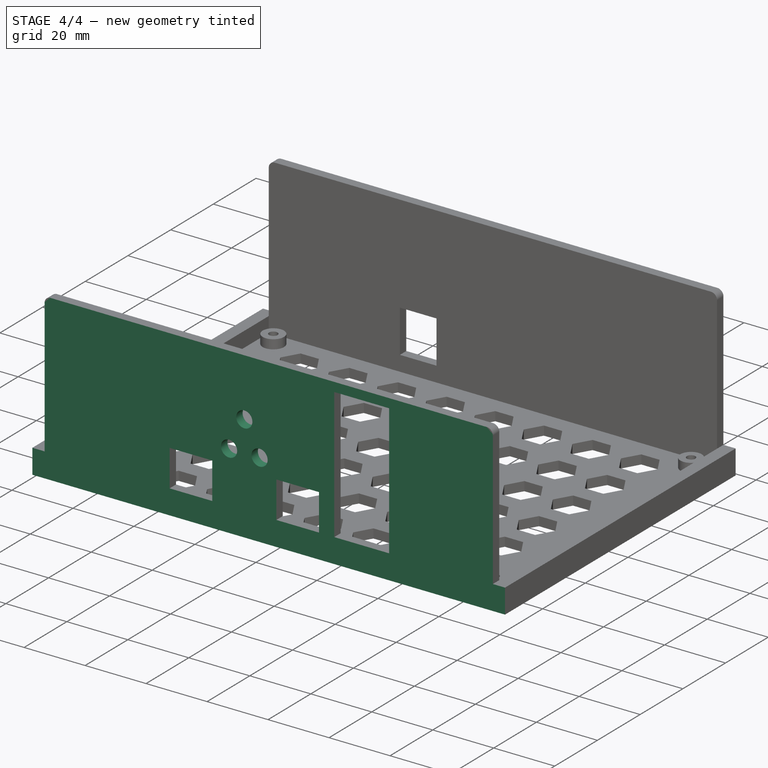
[diagram: stage 4 of 4 — iso view after this stage's code; geometry added in this stage tinted green]
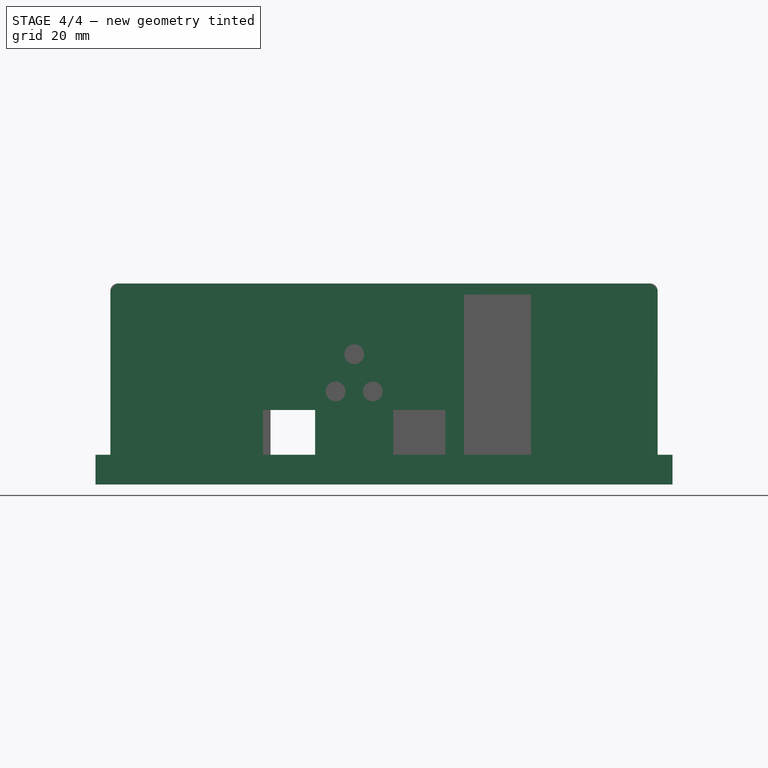
[diagram: stage 4 of 4 — front view after this stage's code; geometry added in this stage tinted green]
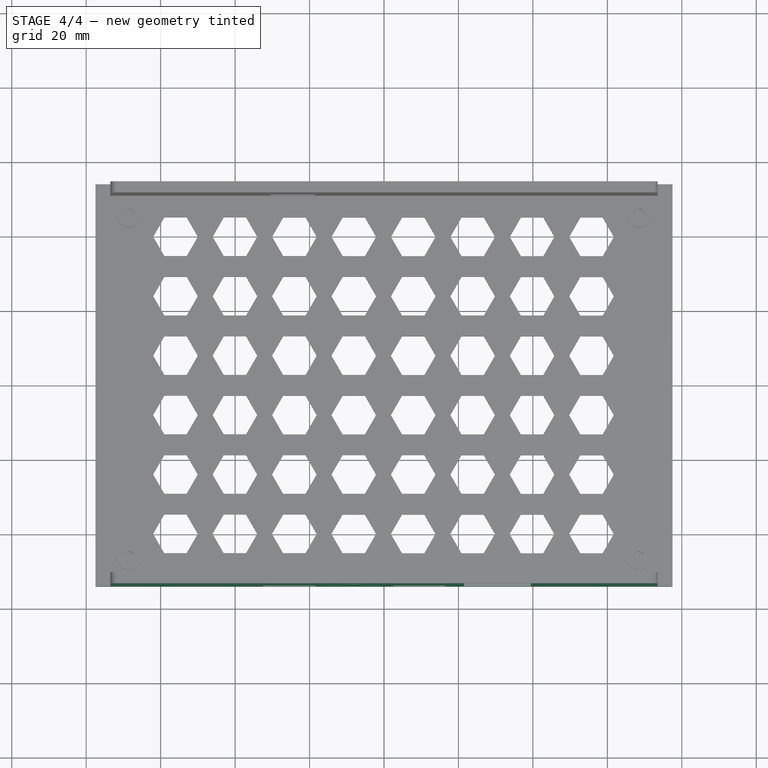
[diagram: stage 4 of 4 — top view after this stage's code; geometry added in this stage tinted green]
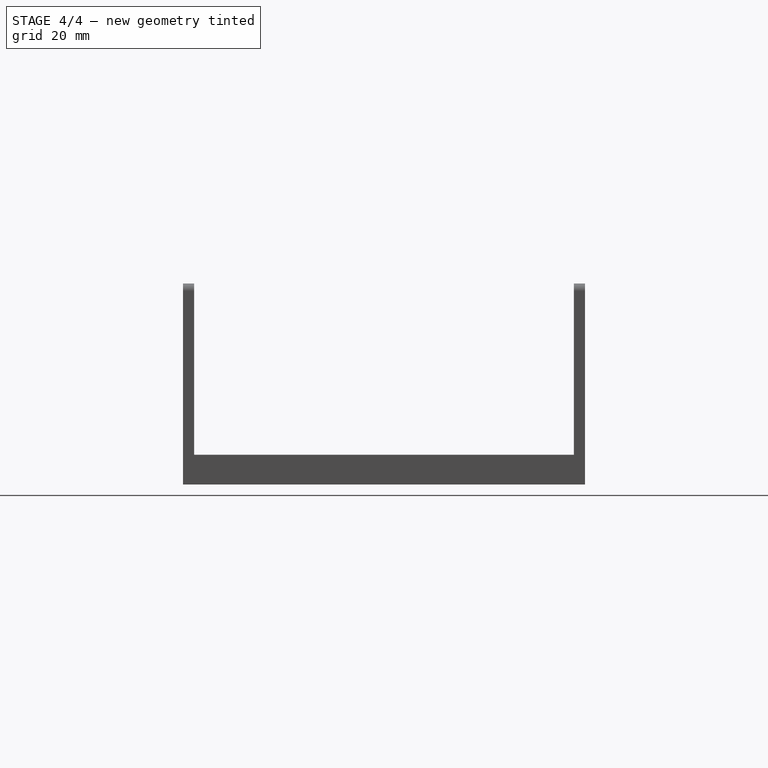
[diagram: stage 4 of 4 — right view after this stage's code; geometry added in this stage tinted green]
FEATURE [Sketcher::SketchObject] Sketch008
  MapMode = 5
  Placement = pos=(0,-55,0) rot=(1,0,0;1.5708rad)
  Support = -> [Pocket004]
  sketch-geometry (3):
    g0: Circle CenterX=-13 CenterY=25 CenterZ=0 NormalX=0 NormalY=0 NormalZ=1 AngleXU=0 Radius=2.65
    g1: Circle CenterX=-3 CenterY=25 CenterZ=0 NormalX=0 NormalY=0 NormalZ=1 AngleXU=0 Radius=2.65
    g2: Circle CenterX=-8 CenterY=35 CenterZ=0 NormalX=0 NormalY=0 NormalZ=1 AngleXU=0 Radius=2.65
  constraints (9):
    c: DistanceY(g-1,g1) = 25
    c: DistanceY(g1,g0) = 0
    c: DistanceY(g1,g2) = 10
    c: DistanceX(g1,g-1) = 3
    c: DistanceX(g0,g1) = 10
    c: DistanceX(g2,g1) = 5
    c: Radius(g2) = 2.65
    c: Radius(g1) = 2.65
    c: Radius(g0) = 2.65
FEATURE [PartDesign::Pocket] Pocket005
  BaseFeature = -> Pocket004
  Length = 5
  Length2 = 100
  Profile = -> Sketch008
  Type = 0
FEATURE [Sketcher::SketchObject] Sketch009
  MapMode = 5
  Support = -> [XY_Plane]
  sketch-geometry (4):
    g0: LineSegment StartX=-80.4335 StartY=-54 StartZ=0 EndX=81.3743 EndY=-54 EndZ=0
    g1: LineSegment StartX=81.3743 StartY=-54 StartZ=0 EndX=81.3743 EndY=-55 EndZ=0
    g2: LineSegment StartX=81.3743 StartY=-55 StartZ=0 EndX=-80.4335 EndY=-55 EndZ=0
    g3: LineSegment StartX=-80.4335 StartY=-55 StartZ=0 EndX=-80.4335 EndY=-54 EndZ=0
  constraints (10):
    c: Coincident(g0,g1)
    c: Coincident(g1,g2)
    c: Coincident(g2,g3)
    c: Coincident(g3,g0)
    c: Horizontal(g0)
    c: Horizontal(g2)
    c: Vertical(g1)
    c: Vertical(g3)
    c: DistanceY(g1,g0) = 1
    c: DistanceY(g0,g-1) = 54
FEATURE [PartDesign::Pocket] Pocket006
  BaseFeature = -> Pocket005
  Length = 60
  Length2 = 100
  Profile = -> Sketch009
  Reversed = true
  Type = 0
FEATURE [Sketcher::SketchObject] Sketch010
  MapMode = 5
  Support = -> [XY_Plane]
  sketch-geometry (4):
    g0: LineSegment StartX=-90.9196 StartY=55 StartZ=0 EndX=89.9344 EndY=55 EndZ=0
    g1: LineSegment StartX=89.9344 StartY=55 StartZ=0 EndX=89.9344 EndY=54 EndZ=0
    g2: LineSegment StartX=89.9344 StartY=54 StartZ=0 EndX=-90.9196 EndY=54 EndZ=0
    g3: LineSegment StartX=-90.9196 StartY=54 StartZ=0 EndX=-90.9196 EndY=55 EndZ=0
  constraints (10):
    c: Coincident(g0,g1)
    c: Coincident(g1,g2)
    c: Coincident(g2,g3)
    c: Coincident(g3,g0)
    c: Horizontal(g0)
    c: Horizontal(g2)
    c: Vertical(g1)
    c: Vertical(g3)
    c: DistanceY(g1,g0) = 1
    c: DistanceY(g-1,g1) = 54
FEATURE [PartDesign::Pocket] Pocket007
  BaseFeature = -> Pocket006
  Length = 60
  Length2 = 100
  Profile = -> Sketch010
  Reversed = true
  Type = 0
FEATURE [PartDesign::Body] Body
  Group = -> [Sketch,Pad,Sketch001,Pocket,Sketch002,Pad001,Pad002,Sketch003,Pocket001,Sketch004,Pad003,Sketch005,Pocket002,Sketch006,Pocket003,Fillet,Sketch007,Pocket004,Sketch008,Pocket005,Sketch009,Pocket006,Sketch010,Pocket007]
  Origin = -> Origin
  Tip = -> Pocket007
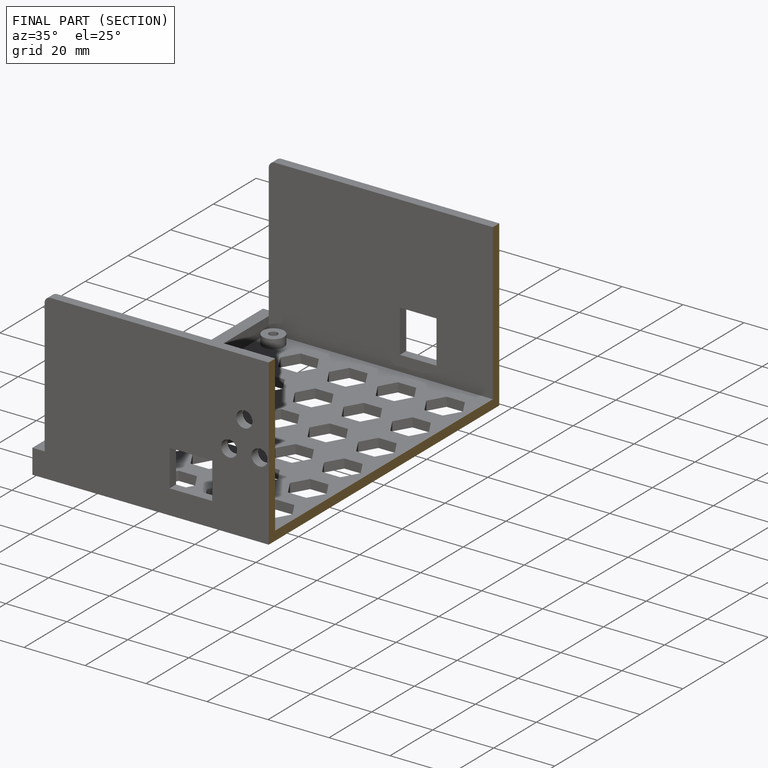
[diagram: finished part — half-section view (interior)]
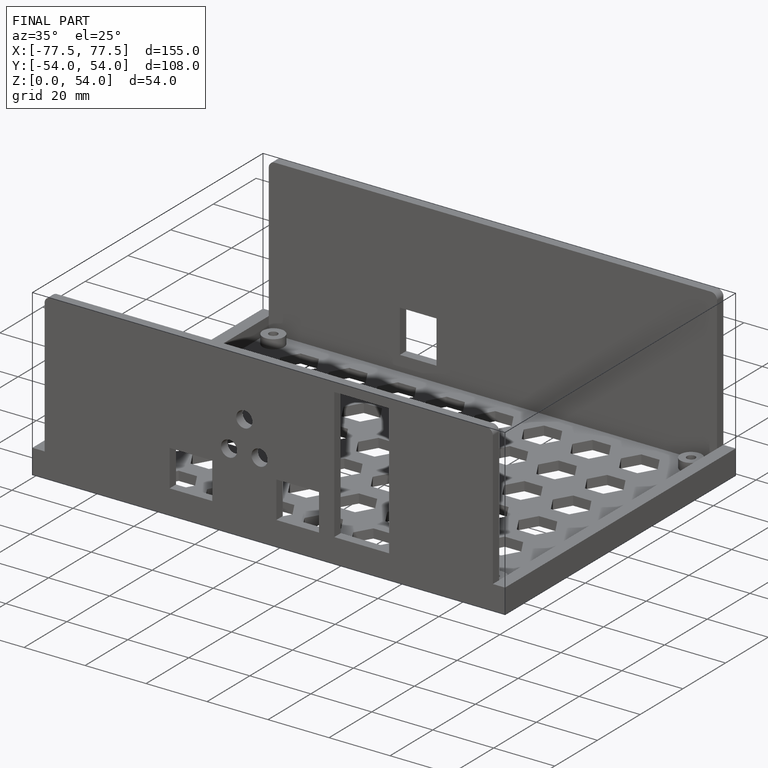
[diagram: finished part — iso view with bounding-box wireframe]
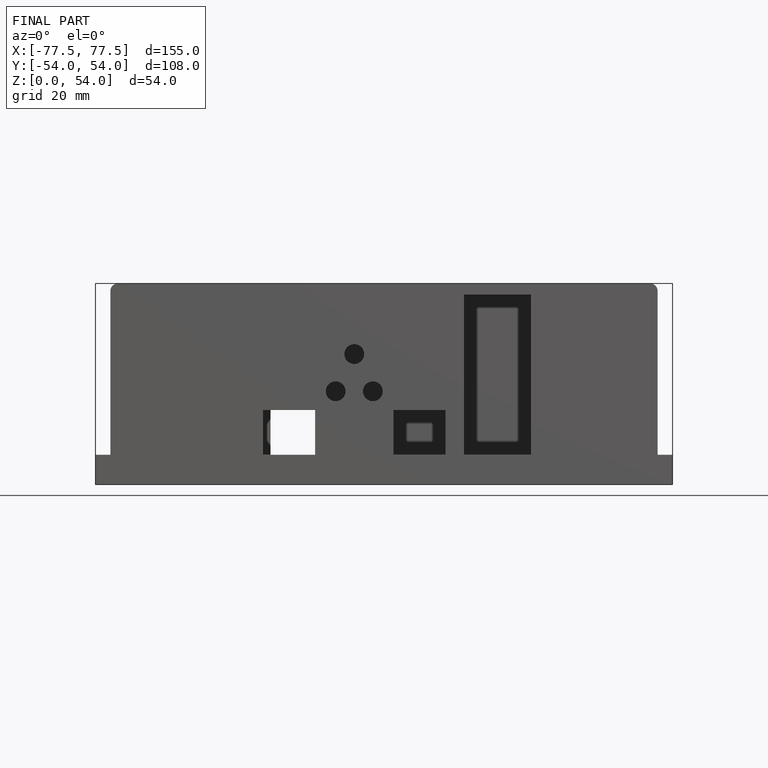
[diagram: finished part — front view with bounding-box wireframe]
